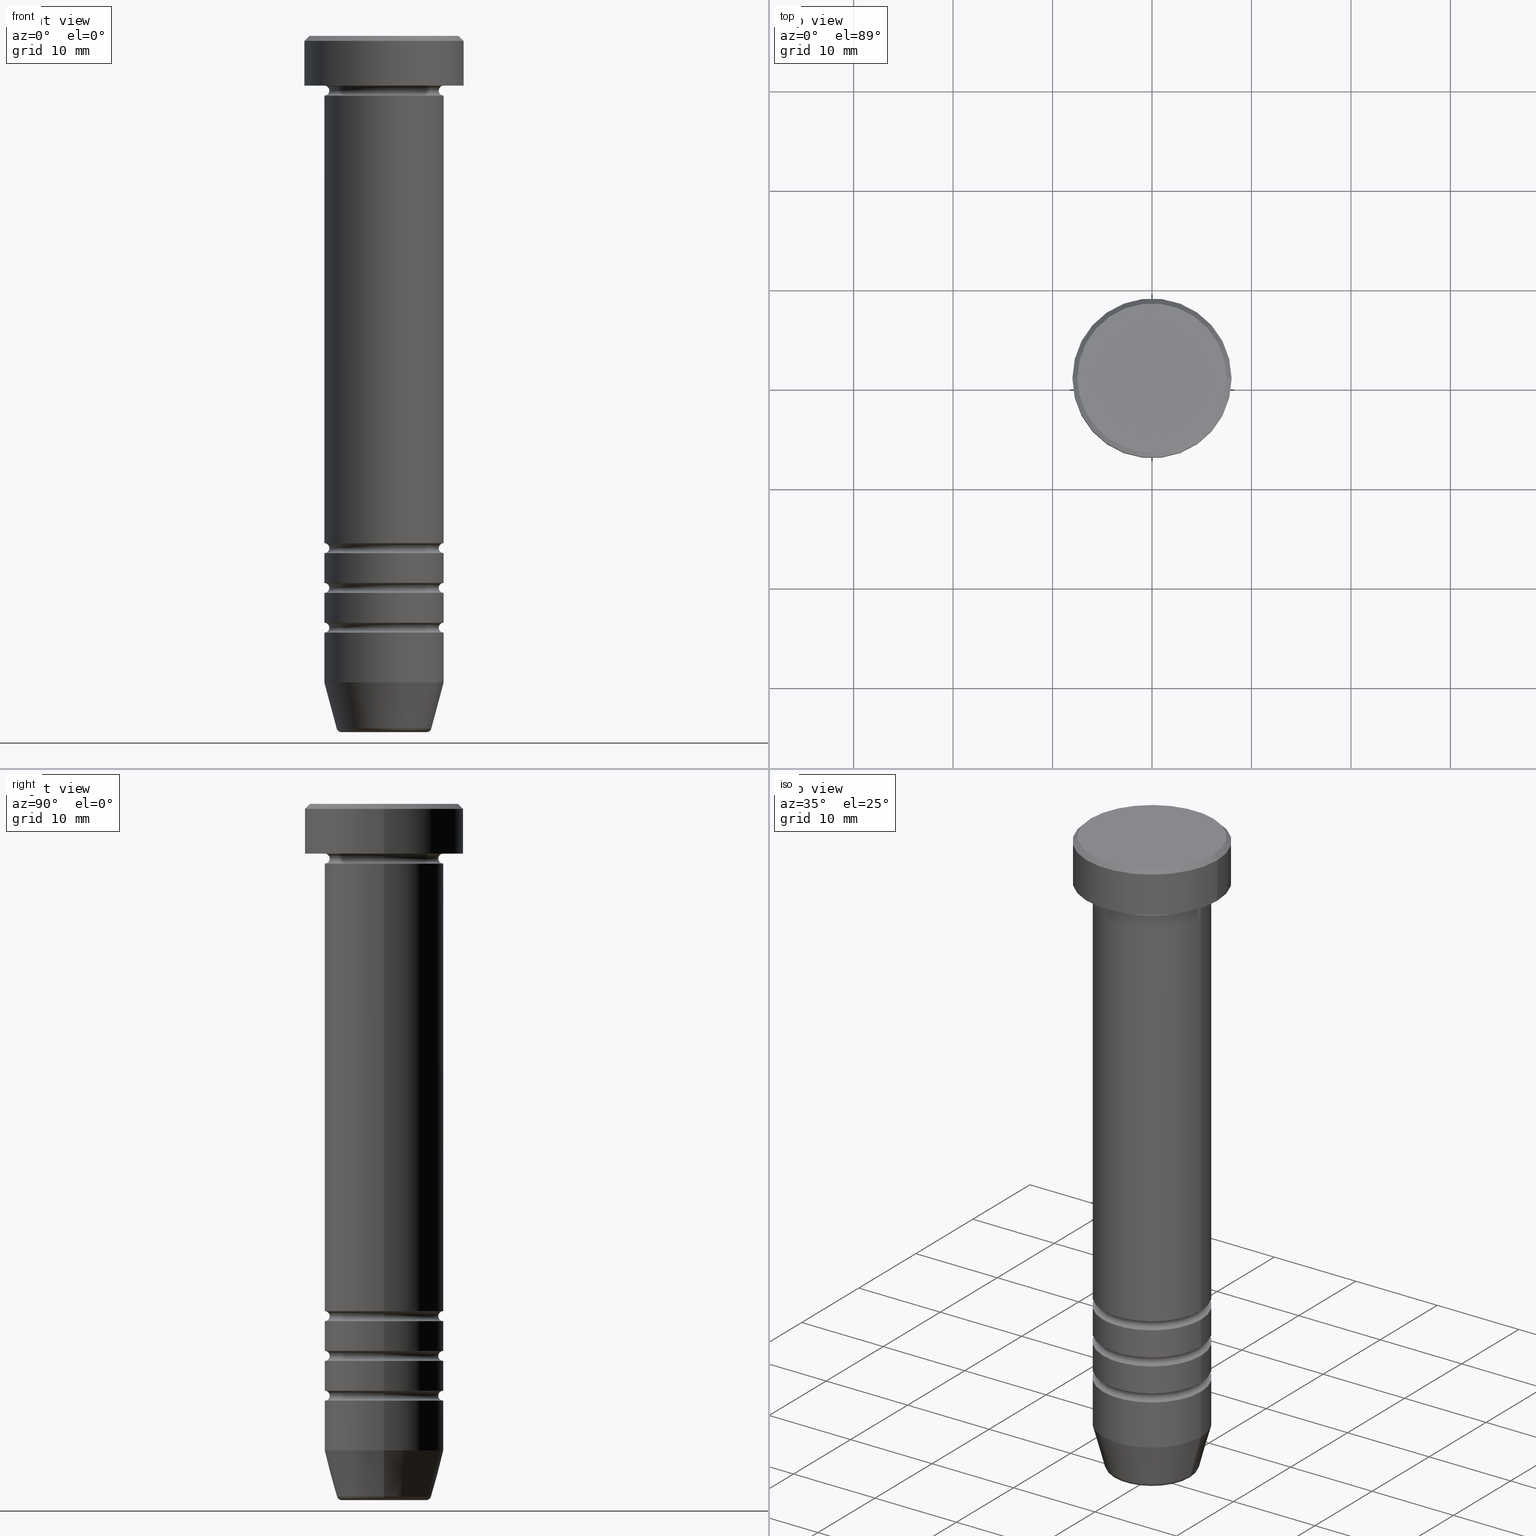
[diagram: canonical four-view strip — front | top / right | iso, engineering-drawing reading convention]
A machine part, canonical four-view strip (front | top / right | iso — engineering-drawing reading convention). The complete STEP part file that produces these views, byte-faithful:
ISO-10303-21;
HEADER;
FILE_DESCRIPTION (( 'STEP AP203' ),
    '1' );
FILE_NAME ('fb8a.STEP',
    '2024-01-03T00:06:08',
    ( '' ),
    ( '' ),
    'SwSTEP 2.0',
    'SolidWorks 2019',
    '' );
FILE_SCHEMA (( 'CONFIG_CONTROL_DESIGN' ));
ENDSEC;

DATA;
#1 = CARTESIAN_POINT ( 'NONE',  ( -6.000000000000000000, 7.347880794884119736E-16, 0.000000000000000000 ) ) ;
#2 = DIRECTION ( 'NONE',  ( -0.000000000000000000, -0.000000000000000000, 1.000000000000000000 ) ) ;
#3 = DIRECTION ( 'NONE',  ( -0.000000000000000000, -0.000000000000000000, 1.000000000000000000 ) ) ;
#4 = FACE_OUTER_BOUND ( 'NONE', #754, .T. ) ;
#5 = CIRCLE ( 'NONE', #729, 5.999999999999992895 ) ;
#6 = AXIS2_PLACEMENT_3D ( 'NONE', #13, #601, #823 ) ;
#7 = AXIS2_PLACEMENT_3D ( 'NONE', #299, #875, #428 ) ;
#8 = VERTEX_POINT ( 'NONE', #77 ) ;
#9 = CARTESIAN_POINT ( 'NONE',  ( 0.000000000000000000, 0.000000000000000000, -5.000000000000000000 ) ) ;
#10 = VERTEX_POINT ( 'NONE', #975 ) ;
#11 = EDGE_CURVE ( 'NONE', #902, #1061, #189, .T. ) ;
#12 = EDGE_LOOP ( 'NONE', ( #910, #340, #818, #357 ) ) ;
#13 = CARTESIAN_POINT ( 'NONE',  ( -6.000000000000000000, 7.347880794884119736E-16, -5.500000000000001776 ) ) ;
#14 = VERTEX_POINT ( 'NONE', #240 ) ;
#15 = FACE_OUTER_BOUND ( 'NONE', #514, .T. ) ;
#16 = EDGE_CURVE ( 'NONE', #348, #566, #797, .T. ) ;
#17 = CARTESIAN_POINT ( 'NONE',  ( 4.276590543854901227, 0.000000000000000000, -70.00000000000000000 ) ) ;
#18 = ORIENTED_EDGE ( 'NONE', *, *, #632, .T. ) ;
#19 = ORIENTED_EDGE ( 'NONE', *, *, #640, .T. ) ;
#20 = CARTESIAN_POINT ( 'NONE',  ( -5.999999999999992895, 7.347880794884112834E-16, -51.00000000000001421 ) ) ;
#21 = AXIS2_PLACEMENT_3D ( 'NONE', #745, #981, #665 ) ;
#22 = AXIS2_PLACEMENT_3D ( 'NONE', #970, #551, #952 ) ;
#23 = AXIS2_PLACEMENT_3D ( 'NONE', #341, #248, #669 ) ;
#24 = DIRECTION ( 'NONE',  ( 0.000000000000000000, 0.000000000000000000, -1.000000000000000000 ) ) ;
#25 = AXIS2_PLACEMENT_3D ( 'NONE', #794, #950, #297 ) ;
#26 = ORIENTED_EDGE ( 'NONE', *, *, #870, .F. ) ;
#27 = PRODUCT_DEFINITION_SHAPE ( 'NONE', 'NONE',  #274 ) ;
#28 = CARTESIAN_POINT ( 'NONE',  ( 0.000000000000000000, 0.000000000000000000, -51.50000000000002132 ) ) ;
#29 = DIRECTION ( 'NONE',  ( 1.000000000000000000, 0.000000000000000000, 0.000000000000000000 ) ) ;
#30 = EDGE_CURVE ( 'NONE', #565, #1061, #289, .T. ) ;
#31 = ORIENTED_EDGE ( 'NONE', *, *, #640, .F. ) ;
#32 = CARTESIAN_POINT ( 'NONE',  ( 0.000000000000000000, 0.000000000000000000, -59.00000000000001421 ) ) ;
#33 = DIRECTION ( 'NONE',  ( -0.000000000000000000, -0.000000000000000000, 1.000000000000000000 ) ) ;
#34 = ORIENTED_EDGE ( 'NONE', *, *, #857, .T. ) ;
#35 = DIRECTION ( 'NONE',  ( 1.000000000000000000, 0.000000000000000000, 0.000000000000000000 ) ) ;
#36 = DIRECTION ( 'NONE',  ( -1.000000000000000000, 0.000000000000000000, 0.000000000000000000 ) ) ;
#37 = AXIS2_PLACEMENT_3D ( 'NONE', #1023, #623, #287 ) ;
#38 = CIRCLE ( 'NONE', #644, 0.5000000000000004441 ) ;
#39 = AXIS2_PLACEMENT_3D ( 'NONE', #808, #791, #957 ) ;
#40 = CIRCLE ( 'NONE', #628, 4.759553456999433330 ) ;
#41 = ORIENTED_EDGE ( 'NONE', *, *, #1009, .T. ) ;
#42 = EDGE_CURVE ( 'NONE', #54, #653, #894, .T. ) ;
#43 = CARTESIAN_POINT ( 'NONE',  ( 6.000000000000000000, 0.000000000000000000, -52.00000000000002132 ) ) ;
#44 = DIRECTION ( 'NONE',  ( 1.000000000000000000, 0.000000000000000000, 0.000000000000000000 ) ) ;
#45 = APPROVAL_DATE_TIME ( #874, #339 ) ;
#46 = CARTESIAN_POINT ( 'NONE',  ( 0.000000000000000000, 0.000000000000000000, -5.500000000000001776 ) ) ;
#47 = CARTESIAN_POINT ( 'NONE',  ( -5.999999999999992895, 7.347880794884112834E-16, -59.00000000000001421 ) ) ;
#48 = FACE_OUTER_BOUND ( 'NONE', #417, .T. ) ;
#49 = ORIENTED_EDGE ( 'NONE', *, *, #925, .F. ) ;
#50 = CARTESIAN_POINT ( 'NONE',  ( 6.000000000000000000, 7.347880794884119736E-16, -5.000000000000000888 ) ) ;
#51 = VECTOR ( 'NONE', #616, 1000.000000000000000 ) ;
#52 = EDGE_CURVE ( 'NONE', #850, #10, #958, .T. ) ;
#53 = AXIS2_PLACEMENT_3D ( 'NONE', #351, #199, #273 ) ;
#54 = VERTEX_POINT ( 'NONE', #371 ) ;
#55 = AXIS2_PLACEMENT_3D ( 'NONE', #759, #180, #507 ) ;
#56 = DIRECTION ( 'NONE',  ( 1.224646799147353207E-16, 1.000000000000000000, 0.000000000000000000 ) ) ;
#57 = CARTESIAN_POINT ( 'NONE',  ( 0.000000000000000000, 0.000000000000000000, 0.000000000000000000 ) ) ;
#58 = ORIENTED_EDGE ( 'NONE', *, *, #42, .T. ) ;
#59 = ADVANCED_FACE ( 'NONE', ( #282 ), #520, .T. ) ;
#60 = EDGE_CURVE ( 'NONE', #176, #953, #712, .T. ) ;
#61 = DIRECTION ( 'NONE',  ( 0.000000000000000000, 0.000000000000000000, -1.000000000000000000 ) ) ;
#62 = CARTESIAN_POINT ( 'NONE',  ( -8.000000000000000000, 9.797174393178825657E-16, -5.000000000000000000 ) ) ;
#63 = CARTESIAN_POINT ( 'NONE',  ( 0.000000000000000000, 0.000000000000000000, 0.000000000000000000 ) ) ;
#64 = CARTESIAN_POINT ( 'NONE',  ( 5.999999999999999112, 0.000000000000000000, 0.000000000000000000 ) ) ;
#65 = EDGE_CURVE ( 'NONE', #923, #565, #846, .T. ) ;
#66 = DIRECTION ( 'NONE',  ( -1.000000000000000000, 0.000000000000000000, 0.000000000000000000 ) ) ;
#67 = DIRECTION ( 'NONE',  ( -0.000000000000000000, -0.000000000000000000, 1.000000000000000000 ) ) ;
#68 = EDGE_LOOP ( 'NONE', ( #415, #717, #888, #776 ) ) ;
#69 = DIRECTION ( 'NONE',  ( -0.000000000000000000, -0.000000000000000000, 1.000000000000000000 ) ) ;
#70 = FACE_OUTER_BOUND ( 'NONE', #333, .T. ) ;
#71 = ORIENTED_EDGE ( 'NONE', *, *, #11, .T. ) ;
#72 = AXIS2_PLACEMENT_3D ( 'NONE', #1041, #934, #963 ) ;
#73 = CIRCLE ( 'NONE', #55, 8.000000000000000000 ) ;
#74 = PRODUCT_DEFINITION_FORMATION_WITH_SPECIFIED_SOURCE ( 'LIBOVOLN�', '', #91, .NOT_KNOWN. ) ;
#75 = ADVANCED_FACE ( 'NONE', ( #1003 ), #385, .T. ) ;
#76 = DIRECTION ( 'NONE',  ( 1.000000000000000000, 0.000000000000000000, 0.000000000000000000 ) ) ;
#77 = CARTESIAN_POINT ( 'NONE',  ( 6.000000000000000000, 0.000000000000000000, -17.50000000000000000 ) ) ;
#78 = DIRECTION ( 'NONE',  ( 1.000000000000000000, 0.000000000000000000, 0.000000000000000000 ) ) ;
#79 = DIRECTION ( 'NONE',  ( -1.000000000000000000, -1.224646799147351482E-16, 0.000000000000000000 ) ) ;
#80 = DIRECTION ( 'NONE',  ( -1.000000000000000000, -1.224646799147351482E-16, 0.000000000000000000 ) ) ;
#81 = EDGE_LOOP ( 'NONE', ( #572, #286, #460, #128 ) ) ;
#82 = CARTESIAN_POINT ( 'NONE',  ( 0.000000000000000000, 0.000000000000000000, 0.000000000000000000 ) ) ;
#83 = ORIENTED_EDGE ( 'NONE', *, *, #381, .T. ) ;
#84 = APPROVAL_DATE_TIME ( #967, #1028 ) ;
#85 = ORIENTED_EDGE ( 'NONE', *, *, #536, .F. ) ;
#86 = DIRECTION ( 'NONE',  ( 0.000000000000000000, 0.000000000000000000, -1.000000000000000000 ) ) ;
#87 = AXIS2_PLACEMENT_3D ( 'NONE', #28, #433, #855 ) ;
#88 = AXIS2_PLACEMENT_3D ( 'NONE', #387, #969, #214 ) ;
#89 = LOCAL_TIME ( 1, 6, 8.000000000000000000, #904 ) ;
#90 = DIRECTION ( 'NONE',  ( 1.000000000000000000, 0.000000000000000000, 0.000000000000000000 ) ) ;
#91 = PRODUCT ( 'fb8a', 'fb8a', '', ( #1039 ) ) ;
#92 = FACE_OUTER_BOUND ( 'NONE', #314, .T. ) ;
#93 = EDGE_LOOP ( 'NONE', ( #877, #583, #675, #206 ) ) ;
#94 = EDGE_CURVE ( 'NONE', #283, #1019, #1013, .T. ) ;
#95 = LINE ( 'NONE', #511, #523 ) ;
#96 = DIRECTION ( 'NONE',  ( 1.000000000000000000, 0.000000000000000000, 0.000000000000000000 ) ) ;
#97 = EDGE_LOOP ( 'NONE', ( #83, #660, #187, #588 ) ) ;
#98 = DIRECTION ( 'NONE',  ( 0.000000000000000000, 0.000000000000000000, -1.000000000000000000 ) ) ;
#99 = PLANE ( 'NONE',  #209 ) ;
#100 = ADVANCED_FACE ( 'NONE', ( #114 ), #325, .F. ) ;
#101 = EDGE_LOOP ( 'NONE', ( #736, #319, #798, #150 ) ) ;
#102 = DIRECTION ( 'NONE',  ( 1.000000000000000000, 0.000000000000000000, 0.000000000000000000 ) ) ;
#103 = AXIS2_PLACEMENT_3D ( 'NONE', #354, #105, #1007 ) ;
#104 = AXIS2_PLACEMENT_3D ( 'NONE', #907, #450, #35 ) ;
#105 = DIRECTION ( 'NONE',  ( -0.000000000000000000, -0.000000000000000000, 1.000000000000000000 ) ) ;
#106 = ADVANCED_FACE ( 'NONE', ( #451 ), #278, .T. ) ;
#107 = VECTOR ( 'NONE', #69, 1000.000000000000000 ) ;
#108 =( GEOMETRIC_REPRESENTATION_CONTEXT ( 3 ) GLOBAL_UNCERTAINTY_ASSIGNED_CONTEXT ( ( #485 ) ) GLOBAL_UNIT_ASSIGNED_CONTEXT ( ( #144, #631, #394 ) ) REPRESENTATION_CONTEXT ( 'NONE', 'WORKASPACE' ) );
#109 = ORIENTED_EDGE ( 'NONE', *, *, #683, .F. ) ;
#110 = CARTESIAN_POINT ( 'NONE',  ( 5.999999999999994671, 0.000000000000000000, -51.50000000000002132 ) ) ;
#111 = CARTESIAN_POINT ( 'NONE',  ( 0.000000000000000000, 0.000000000000000000, -5.500000000000001776 ) ) ;
#112 = ORIENTED_EDGE ( 'NONE', *, *, #571, .T. ) ;
#113 = LINE ( 'NONE', #843, #1046 ) ;
#114 = FACE_OUTER_BOUND ( 'NONE', #12, .T. ) ;
#115 = CARTESIAN_POINT ( 'NONE',  ( 0.000000000000000000, 0.000000000000000000, -55.50000000000001421 ) ) ;
#116 = CALENDAR_DATE ( 2024, 3, 1 ) ;
#117 = DIRECTION ( 'NONE',  ( 1.000000000000000000, 0.000000000000000000, 0.000000000000000000 ) ) ;
#118 = AXIS2_PLACEMENT_3D ( 'NONE', #824, #517, #695 ) ;
#119 = APPROVAL_ROLE ( '' ) ;
#120 = CIRCLE ( 'NONE', #864, 0.5000000000000004441 ) ;
#121 = AXIS2_PLACEMENT_3D ( 'NONE', #218, #720, #872 ) ;
#122 = AXIS2_PLACEMENT_3D ( 'NONE', #405, #645, #80 ) ;
#123 = ORIENTED_EDGE ( 'NONE', *, *, #322, .F. ) ;
#124 = CARTESIAN_POINT ( 'NONE',  ( 0.000000000000000000, 0.000000000000000000, -52.00000000000002132 ) ) ;
#125 = VERTEX_POINT ( 'NONE', #844 ) ;
#126 = ADVANCED_FACE ( 'NONE', ( #441, #703 ), #284, .T. ) ;
#127 = CARTESIAN_POINT ( 'NONE',  ( -7.500000000000009770, 0.000000000000000000, 0.000000000000000000 ) ) ;
#128 = ORIENTED_EDGE ( 'NONE', *, *, #827, .F. ) ;
#129 = APPROVAL_ROLE ( '' ) ;
#130 = FACE_OUTER_BOUND ( 'NONE', #97, .T. ) ;
#131 = PERSON ( 'NEUR�EN�', 'NEUR�EN�', 'NEUR�EN�', ('NEUR�EN�'), ('NEUR�EN�'), ('NEUR�EN�') ) ;
#132 = EDGE_CURVE ( 'NONE', #356, #565, #553, .T. ) ;
#133 = FACE_OUTER_BOUND ( 'NONE', #276, .T. ) ;
#134 = AXIS2_PLACEMENT_3D ( 'NONE', #706, #548, #462 ) ;
#135 = ADVANCED_FACE ( 'NONE', ( #1020 ), #224, .T. ) ;
#136 = CARTESIAN_POINT ( 'NONE',  ( -8.000000000000000000, 9.797174393178825657E-16, -0.4999999999999935052 ) ) ;
#137 = VECTOR ( 'NONE', #3, 1000.000000000000000 ) ;
#138 = ORIENTED_EDGE ( 'NONE', *, *, #449, .T. ) ;
#139 = AXIS2_PLACEMENT_3D ( 'NONE', #805, #590, #298 ) ;
#140 = FACE_OUTER_BOUND ( 'NONE', #101, .T. ) ;
#141 = DIRECTION ( 'NONE',  ( 1.000000000000000000, 0.000000000000000000, 0.000000000000000000 ) ) ;
#142 = CARTESIAN_POINT ( 'NONE',  ( 0.000000000000000000, 0.000000000000000000, -59.50000000000001421 ) ) ;
#143 = CARTESIAN_POINT ( 'NONE',  ( 0.000000000000000000, 0.000000000000000000, -51.50000000000002132 ) ) ;
#144 =( LENGTH_UNIT ( ) NAMED_UNIT ( * ) SI_UNIT ( .MILLI., .METRE. ) );
#145 = CARTESIAN_POINT ( 'NONE',  ( 0.000000000000000000, 0.000000000000000000, -56.00000000000001421 ) ) ;
#146 = DIRECTION ( 'NONE',  ( -1.000000000000000000, 0.000000000000000000, 0.000000000000000000 ) ) ;
#147 = PERSON_AND_ORGANIZATION ( #131, #1016 ) ;
#148 = DIRECTION ( 'NONE',  ( 0.2588190451025214611, 0.000000000000000000, 0.9659258262890679791 ) ) ;
#149 = FACE_OUTER_BOUND ( 'NONE', #968, .T. ) ;
#150 = ORIENTED_EDGE ( 'NONE', *, *, #764, .F. ) ;
#151 = ADVANCED_FACE ( 'NONE', ( #130 ), #222, .T. ) ;
#152 = VERTEX_POINT ( 'NONE', #939 ) ;
#153 = DIRECTION ( 'NONE',  ( -0.000000000000000000, -0.000000000000000000, 1.000000000000000000 ) ) ;
#154 = DATE_AND_TIME ( #401, #89 ) ;
#155 = CARTESIAN_POINT ( 'NONE',  ( 8.000000000000000000, 0.000000000000000000, -5.000000000000000000 ) ) ;
#156 = FACE_OUTER_BOUND ( 'NONE', #321, .T. ) ;
#157 = AXIS2_PLACEMENT_3D ( 'NONE', #410, #67, #816 ) ;
#158 = DIRECTION ( 'NONE',  ( -0.000000000000000000, -0.000000000000000000, 1.000000000000000000 ) ) ;
#159 = ORIENTED_EDGE ( 'NONE', *, *, #16, .T. ) ;
#160 = PLANE ( 'NONE',  #700 ) ;
#161 = DIRECTION ( 'NONE',  ( -0.000000000000000000, -0.000000000000000000, 1.000000000000000000 ) ) ;
#162 = ORIENTED_EDGE ( 'NONE', *, *, #586, .F. ) ;
#163 = CARTESIAN_POINT ( 'NONE',  ( 0.000000000000000000, 2.449293598294707302E-15, -70.00000000000000000 ) ) ;
#164 = FACE_OUTER_BOUND ( 'NONE', #552, .T. ) ;
#165 = EDGE_CURVE ( 'NONE', #547, #991, #591, .T. ) ;
#166 = DIRECTION ( 'NONE',  ( 1.000000000000000000, 0.000000000000000000, 0.000000000000000000 ) ) ;
#167 = ORIENTED_EDGE ( 'NONE', *, *, #883, .F. ) ;
#168 = PRODUCT_RELATED_PRODUCT_CATEGORY ( 'detail', '', ( #91 ) ) ;
#169 = VERTEX_POINT ( 'NONE', #43 ) ;
#170 = TOROIDAL_SURFACE ( 'NONE', #995, 5.999999999999994671, 0.5000000000000000000 ) ;
#171 = FACE_OUTER_BOUND ( 'NONE', #704, .T. ) ;
#172 = AXIS2_PLACEMENT_3D ( 'NONE', #918, #976, #265 ) ;
#173 = APPROVAL_PERSON_ORGANIZATION ( #1022, #859, #129 ) ;
#174 = LINE ( 'NONE', #998, #243 ) ;
#175 = ORIENTED_EDGE ( 'NONE', *, *, #1059, .T. ) ;
#176 = VERTEX_POINT ( 'NONE', #1036 ) ;
#177 = ADVANCED_FACE ( 'NONE', ( #945 ), #306, .F. ) ;
#178 = DIRECTION ( 'NONE',  ( 1.000000000000000000, 0.000000000000000000, 0.000000000000000000 ) ) ;
#179 = DIRECTION ( 'NONE',  ( 0.000000000000000000, 0.000000000000000000, -1.000000000000000000 ) ) ;
#180 = DIRECTION ( 'NONE',  ( -0.000000000000000000, -0.000000000000000000, 1.000000000000000000 ) ) ;
#181 = ORIENTED_EDGE ( 'NONE', *, *, #784, .T. ) ;
#182 = EDGE_LOOP ( 'NONE', ( #543, #873, #760, #884 ) ) ;
#183 = EDGE_CURVE ( 'NONE', #14, #756, #577, .T. ) ;
#184 = DIRECTION ( 'NONE',  ( 0.000000000000000000, -1.000000000000000000, 0.000000000000000000 ) ) ;
#185 = DIRECTION ( 'NONE',  ( -0.000000000000000000, -0.000000000000000000, 1.000000000000000000 ) ) ;
#186 = DIRECTION ( 'NONE',  ( 0.000000000000000000, -1.000000000000000000, 0.000000000000000000 ) ) ;
#187 = ORIENTED_EDGE ( 'NONE', *, *, #527, .F. ) ;
#188 = ORIENTED_EDGE ( 'NONE', *, *, #244, .F. ) ;
#189 = CIRCLE ( 'NONE', #21, 0.5000000000000004441 ) ;
#190 = FACE_OUTER_BOUND ( 'NONE', #301, .T. ) ;
#191 = AXIS2_PLACEMENT_3D ( 'NONE', #110, #184, #690 ) ;
#192 = AXIS2_PLACEMENT_3D ( 'NONE', #812, #951, #550 ) ;
#193 = DIRECTION ( 'NONE',  ( 1.000000000000000000, 0.000000000000000000, 0.000000000000000000 ) ) ;
#194 = CC_DESIGN_PERSON_AND_ORGANIZATION_ASSIGNMENT ( #391, #856, ( #74 ) ) ;
#195 = TOROIDAL_SURFACE ( 'NONE', #192, 5.999999999999994671, 0.5000000000000000000 ) ;
#196 = AXIS2_PLACEMENT_3D ( 'NONE', #239, #153, #1057 ) ;
#197 = ORIENTED_EDGE ( 'NONE', *, *, #603, .F. ) ;
#198 = ORIENTED_EDGE ( 'NONE', *, *, #1053, .F. ) ;
#199 = DIRECTION ( 'NONE',  ( 1.224646799147353207E-16, 1.000000000000000000, 0.000000000000000000 ) ) ;
#200 = CARTESIAN_POINT ( 'NONE',  ( 0.000000000000000000, 0.000000000000000000, -56.00000000000001421 ) ) ;
#201 = ADVANCED_FACE ( 'NONE', ( #207 ), #878, .T. ) ;
#202 = CARTESIAN_POINT ( 'NONE',  ( 0.000000000000000000, 0.000000000000000000, -51.50000000000002132 ) ) ;
#203 = PERSON_AND_ORGANIZATION ( #131, #1016 ) ;
#204 = CARTESIAN_POINT ( 'NONE',  ( 0.000000000000000000, 0.000000000000000000, -70.00000000000000000 ) ) ;
#205 = ADVANCED_FACE ( 'NONE', ( #871 ), #540, .T. ) ;
#206 = ORIENTED_EDGE ( 'NONE', *, *, #11, .F. ) ;
#207 = FACE_OUTER_BOUND ( 'NONE', #81, .T. ) ;
#208 = COORDINATED_UNIVERSAL_TIME_OFFSET ( 1, 0, .AHEAD. ) ;
#209 = AXIS2_PLACEMENT_3D ( 'NONE', #600, #427, #269 ) ;
#210 = CIRCLE ( 'NONE', #598, 8.000000000000000000 ) ;
#211 = ORIENTED_EDGE ( 'NONE', *, *, #183, .F. ) ;
#212 = EDGE_CURVE ( 'NONE', #10, #310, #715, .T. ) ;
#213 = DIRECTION ( 'NONE',  ( -0.000000000000000000, -1.000000000000000000, -0.000000000000000000 ) ) ;
#214 = DIRECTION ( 'NONE',  ( 1.000000000000000000, 0.000000000000000000, 0.000000000000000000 ) ) ;
#215 = ORIENTED_EDGE ( 'NONE', *, *, #362, .T. ) ;
#216 = ADVANCED_FACE ( 'NONE', ( #140 ), #217, .T. ) ;
#217 = CYLINDRICAL_SURFACE ( 'NONE', #473, 5.999999999999999112 ) ;
#218 = CARTESIAN_POINT ( 'NONE',  ( 0.000000000000000000, 0.000000000000000000, -59.50000000000001421 ) ) ;
#219 = DIRECTION ( 'NONE',  ( -1.000000000000000000, -1.224646799147351482E-16, 0.000000000000000000 ) ) ;
#220 = ORIENTED_EDGE ( 'NONE', *, *, #412, .T. ) ;
#221 = CALENDAR_DATE ( 2024, 3, 1 ) ;
#222 = CYLINDRICAL_SURFACE ( 'NONE', #908, 5.999999999999996447 ) ;
#223 = DIRECTION ( 'NONE',  ( -0.000000000000000000, -0.000000000000000000, 1.000000000000000000 ) ) ;
#224 = TOROIDAL_SURFACE ( 'NONE', #37, 4.276590543854901227, 0.5000000000000000000 ) ;
#225 = DIRECTION ( 'NONE',  ( 0.000000000000000000, 0.000000000000000000, -1.000000000000000000 ) ) ;
#226 = AXIS2_PLACEMENT_3D ( 'NONE', #917, #179, #762 ) ;
#227 = CIRCLE ( 'NONE', #783, 6.000000000000000000 ) ;
#228 = ORIENTED_EDGE ( 'NONE', *, *, #826, .T. ) ;
#229 = CC_DESIGN_APPROVAL ( #339, ( #74 ) ) ;
#230 = PERSON_AND_ORGANIZATION ( #131, #1016 ) ;
#231 = DIRECTION ( 'NONE',  ( 1.000000000000000000, 0.000000000000000000, 0.000000000000000000 ) ) ;
#232 = ADVANCED_FACE ( 'NONE', ( #1032 ), #376, .T. ) ;
#233 = ORIENTED_EDGE ( 'NONE', *, *, #367, .T. ) ;
#234 = CARTESIAN_POINT ( 'NONE',  ( -6.000000000000000000, 7.347880794884119736E-16, -17.50000000000000000 ) ) ;
#235 = DIRECTION ( 'NONE',  ( -0.000000000000000000, -0.000000000000000000, 1.000000000000000000 ) ) ;
#236 = VERTEX_POINT ( 'NONE', #416 ) ;
#237 = ORIENTED_EDGE ( 'NONE', *, *, #60, .T. ) ;
#238 = CARTESIAN_POINT ( 'NONE',  ( -5.999999999999994671, 0.000000000000000000, -55.50000000000001421 ) ) ;
#239 = CARTESIAN_POINT ( 'NONE',  ( 0.000000000000000000, 0.000000000000000000, -5.500000000000001776 ) ) ;
#240 = CARTESIAN_POINT ( 'NONE',  ( 7.500000000000009770, 9.491012693391993703E-16, 0.000000000000000000 ) ) ;
#241 = CARTESIAN_POINT ( 'NONE',  ( 8.000000000000000000, 0.000000000000000000, -0.4999999999999935052 ) ) ;
#242 = AXIS2_PLACEMENT_3D ( 'NONE', #200, #771, #29 ) ;
#243 = VECTOR ( 'NONE', #320, 1000.000000000000000 ) ;
#244 = EDGE_CURVE ( 'NONE', #696, #236, #386, .T. ) ;
#245 = LOCAL_TIME ( 1, 6, 8.000000000000000000, #208 ) ;
#246 = DIRECTION ( 'NONE',  ( -0.000000000000000000, -0.000000000000000000, 1.000000000000000000 ) ) ;
#247 = CARTESIAN_POINT ( 'NONE',  ( 0.000000000000000000, 0.000000000000000000, -65.00000000000000000 ) ) ;
#248 = DIRECTION ( 'NONE',  ( -0.000000000000000000, -0.000000000000000000, 1.000000000000000000 ) ) ;
#249 = ORIENTED_EDGE ( 'NONE', *, *, #250, .T. ) ;
#250 = EDGE_CURVE ( 'NONE', #294, #360, #979, .T. ) ;
#251 = ORIENTED_EDGE ( 'NONE', *, *, #94, .F. ) ;
#252 = EDGE_CURVE ( 'NONE', #425, #948, #1056, .T. ) ;
#253 = DIRECTION ( 'NONE',  ( -0.000000000000000000, -0.000000000000000000, 1.000000000000000000 ) ) ;
#254 = ORIENTED_EDGE ( 'NONE', *, *, #937, .T. ) ;
#255 = DIRECTION ( 'NONE',  ( -1.000000000000000000, 0.000000000000000000, 0.000000000000000000 ) ) ;
#256 = EDGE_LOOP ( 'NONE', ( #409, #933, #692, #343 ) ) ;
#257 = AXIS2_PLACEMENT_3D ( 'NONE', #806, #56, #788 ) ;
#258 = ORIENTED_EDGE ( 'NONE', *, *, #753, .F. ) ;
#259 = CARTESIAN_POINT ( 'NONE',  ( -5.499999999999995559, 7.041719095097278907E-16, -55.50000000000000711 ) ) ;
#260 = CIRCLE ( 'NONE', #594, 5.999999999999992895 ) ;
#261 = FACE_OUTER_BOUND ( 'NONE', #614, .T. ) ;
#262 = CIRCLE ( 'NONE', #626, 0.5000000000000004441 ) ;
#263 = AXIS2_PLACEMENT_3D ( 'NONE', #142, #479, #659 ) ;
#264 = CARTESIAN_POINT ( 'NONE',  ( 0.000000000000000000, 0.000000000000000000, -70.00000000000000000 ) ) ;
#265 = DIRECTION ( 'NONE',  ( 1.000000000000000000, 0.000000000000000000, 0.000000000000000000 ) ) ;
#266 = ORIENTED_EDGE ( 'NONE', *, *, #989, .F. ) ;
#267 = EDGE_CURVE ( 'NONE', #176, #991, #308, .T. ) ;
#268 = ORIENTED_EDGE ( 'NONE', *, *, #461, .T. ) ;
#269 = DIRECTION ( 'NONE',  ( -1.000000000000000000, 0.000000000000000000, -0.000000000000000000 ) ) ;
#270 = CARTESIAN_POINT ( 'NONE',  ( 0.000000000000000000, 0.000000000000000000, -69.50000000000000000 ) ) ;
#271 = ORIENTED_EDGE ( 'NONE', *, *, #367, .F. ) ;
#272 = EDGE_LOOP ( 'NONE', ( #162, #198, #268, #159 ) ) ;
#273 = DIRECTION ( 'NONE',  ( -1.000000000000000000, 1.224646799147353454E-16, 0.000000000000000000 ) ) ;
#274 = PRODUCT_DEFINITION ( 'NEZN�M�', '', #74, #710 ) ;
#275 = CARTESIAN_POINT ( 'NONE',  ( -5.999999999999994671, 7.347880794884112834E-16, -59.50000000000001421 ) ) ;
#276 = EDGE_LOOP ( 'NONE', ( #338, #138, #688, #486 ) ) ;
#277 = EDGE_LOOP ( 'NONE', ( #529, #657, #848, #167 ) ) ;
#278 = CONICAL_SURFACE ( 'NONE', #828, 7.500000000000009770, 0.7853981633974447263 ) ;
#279 = CYLINDRICAL_SURFACE ( 'NONE', #750, 8.000000000000000000 ) ;
#280 = CIRCLE ( 'NONE', #226, 5.499999999999995559 ) ;
#281 = CIRCLE ( 'NONE', #926, 0.5000000000000004441 ) ;
#282 = FACE_OUTER_BOUND ( 'NONE', #182, .T. ) ;
#283 = VERTEX_POINT ( 'NONE', #589 ) ;
#284 = PLANE ( 'NONE',  #418 ) ;
#285 = EDGE_CURVE ( 'NONE', #566, #348, #667, .T. ) ;
#286 = ORIENTED_EDGE ( 'NONE', *, *, #212, .T. ) ;
#287 = DIRECTION ( 'NONE',  ( 1.000000000000000000, 0.000000000000000000, 0.000000000000000000 ) ) ;
#288 = APPROVAL_STATUS ( 'not_yet_approved' ) ;
#289 = CIRCLE ( 'NONE', #118, 5.499999999999995559 ) ;
#290 = VECTOR ( 'NONE', #778, 1000.000000000000114 ) ;
#291 = DIRECTION ( 'NONE',  ( -1.000000000000000000, 1.224646799147351482E-16, 0.000000000000000000 ) ) ;
#292 = CIRCLE ( 'NONE', #732, 0.5000000000000004441 ) ;
#293 = TOROIDAL_SURFACE ( 'NONE', #263, 5.999999999999994671, 0.5000000000000000000 ) ;
#294 = VERTEX_POINT ( 'NONE', #836 ) ;
#295 = EDGE_CURVE ( 'NONE', #14, #597, #113, .T. ) ;
#296 = DATE_AND_TIME ( #221, #960 ) ;
#297 = DIRECTION ( 'NONE',  ( 1.000000000000000000, 0.000000000000000000, 0.000000000000000000 ) ) ;
#298 = DIRECTION ( 'NONE',  ( 1.000000000000000000, 0.000000000000000000, 0.000000000000000000 ) ) ;
#299 = CARTESIAN_POINT ( 'NONE',  ( 0.000000000000000000, 0.000000000000000000, -60.00000000000001421 ) ) ;
#300 = DIRECTION ( 'NONE',  ( 1.000000000000000000, 0.000000000000000000, 0.000000000000000000 ) ) ;
#301 = EDGE_LOOP ( 'NONE', ( #411, #34, #1055, #585 ) ) ;
#302 = PERSON_AND_ORGANIZATION_ROLE ( 'classification_officer' ) ;
#303 = DIRECTION ( 'NONE',  ( -0.000000000000000000, -0.000000000000000000, 1.000000000000000000 ) ) ;
#304 = ADVANCED_FACE ( 'NONE', ( #530 ), #99, .T. ) ;
#305 = DIRECTION ( 'NONE',  ( -0.000000000000000000, -0.000000000000000000, 1.000000000000000000 ) ) ;
#306 = TOROIDAL_SURFACE ( 'NONE', #452, 6.000000000000000000, 0.5000000000000000000 ) ;
#307 = DIRECTION ( 'NONE',  ( 1.000000000000000000, 0.000000000000000000, 0.000000000000000000 ) ) ;
#308 = CIRCLE ( 'NONE', #437, 0.5000000000000004441 ) ;
#309 = CIRCLE ( 'NONE', #39, 5.499999999999995559 ) ;
#310 = VERTEX_POINT ( 'NONE', #609 ) ;
#311 = AXIS2_PLACEMENT_3D ( 'NONE', #334, #488, #78 ) ;
#312 = EDGE_LOOP ( 'NONE', ( #31, #85 ) ) ;
#313 = CARTESIAN_POINT ( 'NONE',  ( 6.000000000000000000, 0.000000000000000000, -56.00000000000001421 ) ) ;
#314 = EDGE_LOOP ( 'NONE', ( #680, #913, #249, #436 ) ) ;
#315 = CARTESIAN_POINT ( 'NONE',  ( -5.999999999999999112, 7.347880794884118750E-16, 0.000000000000000000 ) ) ;
#316 = CARTESIAN_POINT ( 'NONE',  ( 0.000000000000000000, 0.000000000000000000, -59.50000000000001421 ) ) ;
#317 = EDGE_LOOP ( 'NONE', ( #964, #508, #611, #650 ) ) ;
#318 = CARTESIAN_POINT ( 'NONE',  ( -5.999999999999996447, 7.347880794884115792E-16, 0.000000000000000000 ) ) ;
#319 = ORIENTED_EDGE ( 'NONE', *, *, #592, .T. ) ;
#320 = DIRECTION ( 'NONE',  ( -0.000000000000000000, -0.000000000000000000, 1.000000000000000000 ) ) ;
#321 = EDGE_LOOP ( 'NONE', ( #1004, #711, #1001, #681 ) ) ;
#322 = EDGE_CURVE ( 'NONE', #923, #176, #95, .T. ) ;
#323 = ORIENTED_EDGE ( 'NONE', *, *, #16, .F. ) ;
#324 = FACE_OUTER_BOUND ( 'NONE', #602, .T. ) ;
#325 = TOROIDAL_SURFACE ( 'NONE', #499, 5.999999999999994671, 0.5000000000000000000 ) ;
#326 = VECTOR ( 'NONE', #880, 1000.000000000000114 ) ;
#327 = CIRCLE ( 'NONE', #7, 6.000000000000000000 ) ;
#328 = ADVANCED_FACE ( 'NONE', ( #171 ), #829, .F. ) ;
#329 = ORIENTED_EDGE ( 'NONE', *, *, #395, .F. ) ;
#330 = CIRCLE ( 'NONE', #580, 6.000000000000000000 ) ;
#331 = CONICAL_SURFACE ( 'NONE', #353, 7.500000000000009770, 0.7853981633974447263 ) ;
#332 = EDGE_CURVE ( 'NONE', #858, #374, #698, .T. ) ;
#333 = EDGE_LOOP ( 'NONE', ( #123, #1005, #112, #854 ) ) ;
#334 = CARTESIAN_POINT ( 'NONE',  ( 0.000000000000000000, 0.000000000000000000, -51.00000000000001421 ) ) ;
#335 = DIRECTION ( 'NONE',  ( 1.000000000000000000, 0.000000000000000000, 0.000000000000000000 ) ) ;
#336 = ORIENTED_EDGE ( 'NONE', *, *, #332, .T. ) ;
#337 = DIRECTION ( 'NONE',  ( 1.000000000000000000, 0.000000000000000000, 0.000000000000000000 ) ) ;
#338 = ORIENTED_EDGE ( 'NONE', *, *, #362, .F. ) ;
#339 = APPROVAL ( #731, 'NEUR�EN�' ) ;
#340 = ORIENTED_EDGE ( 'NONE', *, *, #165, .T. ) ;
#341 = CARTESIAN_POINT ( 'NONE',  ( 0.000000000000000000, 0.000000000000000000, -55.50000000000000711 ) ) ;
#342 = ORIENTED_EDGE ( 'NONE', *, *, #442, .F. ) ;
#343 = ORIENTED_EDGE ( 'NONE', *, *, #621, .F. ) ;
#344 = DIRECTION ( 'NONE',  ( 1.000000000000000000, 0.000000000000000000, 0.000000000000000000 ) ) ;
#345 = CARTESIAN_POINT ( 'NONE',  ( 6.000000000000000000, 0.000000000000000000, -6.000000000000001776 ) ) ;
#346 = EDGE_CURVE ( 'NONE', #54, #10, #815, .T. ) ;
#347 = CARTESIAN_POINT ( 'NONE',  ( 5.999999999999994671, 7.347880794884112834E-16, -59.50000000000001421 ) ) ;
#348 = VERTEX_POINT ( 'NONE', #345 ) ;
#349 = ORIENTED_EDGE ( 'NONE', *, *, #1006, .F. ) ;
#350 = AXIS2_PLACEMENT_3D ( 'NONE', #204, #554, #545 ) ;
#351 = CARTESIAN_POINT ( 'NONE',  ( -4.276590543854901227, 5.237312920795743091E-16, -69.50000000000000000 ) ) ;
#352 = AXIS2_PLACEMENT_3D ( 'NONE', #9, #253, #335 ) ;
#353 = AXIS2_PLACEMENT_3D ( 'NONE', #839, #821, #146 ) ;
#354 = CARTESIAN_POINT ( 'NONE',  ( 0.000000000000000000, 0.000000000000000000, -70.00000000000000000 ) ) ;
#355 = FACE_OUTER_BOUND ( 'NONE', #256, .T. ) ;
#356 = VERTEX_POINT ( 'NONE', #438 ) ;
#357 = ORIENTED_EDGE ( 'NONE', *, *, #250, .F. ) ;
#358 = DIRECTION ( 'NONE',  ( 1.000000000000000000, 0.000000000000000000, 0.000000000000000000 ) ) ;
#359 = CARTESIAN_POINT ( 'NONE',  ( 0.000000000000000000, 8.000000000000000000, -5.000000000000000888 ) ) ;
#360 = VERTEX_POINT ( 'NONE', #757 ) ;
#361 = EDGE_LOOP ( 'NONE', ( #237, #431, #41, #513 ) ) ;
#362 = EDGE_CURVE ( 'NONE', #1019, #566, #515, .T. ) ;
#363 = DIRECTION ( 'NONE',  ( -0.000000000000000000, -0.000000000000000000, 1.000000000000000000 ) ) ;
#364 = CARTESIAN_POINT ( 'NONE',  ( 0.000000000000000000, 0.000000000000000000, -69.62940952255127058 ) ) ;
#365 = DIRECTION ( 'NONE',  ( 1.000000000000000000, 0.000000000000000000, 0.000000000000000000 ) ) ;
#366 = EDGE_LOOP ( 'NONE', ( #919, #215, #323, #938 ) ) ;
#367 = EDGE_CURVE ( 'NONE', #756, #494, #852, .T. ) ;
#368 = DIRECTION ( 'NONE',  ( -0.000000000000000000, -0.000000000000000000, 1.000000000000000000 ) ) ;
#369 = VECTOR ( 'NONE', #658, 1000.000000000000000 ) ;
#370 = CIRCLE ( 'NONE', #615, 6.000000000000000000 ) ;
#371 = CARTESIAN_POINT ( 'NONE',  ( -4.276590543854901227, 5.533042413640409504E-16, -70.00000000000000000 ) ) ;
#372 = FACE_OUTER_BOUND ( 'NONE', #272, .T. ) ;
#373 = CIRCLE ( 'NONE', #440, 5.499999999999995559 ) ;
#374 = VERTEX_POINT ( 'NONE', #677 ) ;
#375 = DIRECTION ( 'NONE',  ( 0.000000000000000000, 0.000000000000000000, -1.000000000000000000 ) ) ;
#376 = CYLINDRICAL_SURFACE ( 'NONE', #134, 5.999999999999996447 ) ;
#377 = ADVANCED_FACE ( 'NONE', ( #15 ), #664, .F. ) ;
#378 = ORIENTED_EDGE ( 'NONE', *, *, #244, .T. ) ;
#379 = SECURITY_CLASSIFICATION_LEVEL ( 'unclassified' ) ;
#380 = DIRECTION ( 'NONE',  ( -1.000000000000000000, 0.000000000000000000, -0.000000000000000000 ) ) ;
#381 = EDGE_CURVE ( 'NONE', #858, #425, #5, .T. ) ;
#382 = FACE_OUTER_BOUND ( 'NONE', #509, .T. ) ;
#383 = EDGE_LOOP ( 'NONE', ( #19, #838, #402, #992 ) ) ;
#384 = DIRECTION ( 'NONE',  ( 0.000000000000000000, 0.000000000000000000, -1.000000000000000000 ) ) ;
#385 = TOROIDAL_SURFACE ( 'NONE', #978, 4.276590543854901227, 0.5000000000000000000 ) ;
#386 = CIRCLE ( 'NONE', #766, 6.000000000000000000 ) ;
#387 = CARTESIAN_POINT ( 'NONE',  ( 0.000000000000000000, 0.000000000000000000, -55.50000000000000711 ) ) ;
#388 = VECTOR ( 'NONE', #563, 1000.000000000000000 ) ;
#389 = CC_DESIGN_APPROVAL ( #1028, ( #274 ) ) ;
#390 = CC_DESIGN_PERSON_AND_ORGANIZATION_ASSIGNMENT ( #534, #935, ( #74 ) ) ;
#391 = PERSON_AND_ORGANIZATION ( #131, #1016 ) ;
#392 = DIRECTION ( 'NONE',  ( 1.224646799147353207E-16, 1.000000000000000000, 0.000000000000000000 ) ) ;
#393 = DIRECTION ( 'NONE',  ( 1.000000000000000000, 0.000000000000000000, 0.000000000000000000 ) ) ;
#394 =( NAMED_UNIT ( * ) SI_UNIT ( $, .STERADIAN. ) SOLID_ANGLE_UNIT ( ) );
#395 = EDGE_CURVE ( 'NONE', #902, #923, #260, .T. ) ;
#396 = CARTESIAN_POINT ( 'NONE',  ( 5.499999999999995559, 0.000000000000000000, -59.50000000000001421 ) ) ;
#397 = DATE_TIME_ROLE ( 'creation_date' ) ;
#398 = CARTESIAN_POINT ( 'NONE',  ( 0.000000000000000000, 0.000000000000000000, -5.500000000000001776 ) ) ;
#399 = DIRECTION ( 'NONE',  ( 1.000000000000000000, 0.000000000000000000, 0.000000000000000000 ) ) ;
#400 = ADVANCED_FACE ( 'NONE', ( #190 ), #613, .F. ) ;
#401 = CALENDAR_DATE ( 2024, 3, 1 ) ;
#402 = ORIENTED_EDGE ( 'NONE', *, *, #972, .T. ) ;
#403 = ORIENTED_EDGE ( 'NONE', *, *, #536, .T. ) ;
#404 = CIRCLE ( 'NONE', #689, 6.000000000000000000 ) ;
#405 = CARTESIAN_POINT ( 'NONE',  ( 5.999999999999994671, 7.347880794884112834E-16, -55.50000000000001421 ) ) ;
#406 = EDGE_LOOP ( 'NONE', ( #830, #927, #787, #465 ) ) ;
#407 = ADVANCED_FACE ( 'NONE', ( #261 ), #279, .T. ) ;
#408 = DIRECTION ( 'NONE',  ( -0.000000000000000000, -0.000000000000000000, 1.000000000000000000 ) ) ;
#409 = ORIENTED_EDGE ( 'NONE', *, *, #867, .T. ) ;
#410 = CARTESIAN_POINT ( 'NONE',  ( 0.000000000000000000, 0.000000000000000000, 0.000000000000000000 ) ) ;
#411 = ORIENTED_EDGE ( 'NONE', *, *, #655, .F. ) ;
#412 = EDGE_CURVE ( 'NONE', #1061, #565, #280, .T. ) ;
#413 = CARTESIAN_POINT ( 'NONE',  ( 6.000000000000000000, 0.000000000000000000, 0.000000000000000000 ) ) ;
#414 = DIRECTION ( 'NONE',  ( 1.000000000000000000, 0.000000000000000000, 0.000000000000000000 ) ) ;
#415 = ORIENTED_EDGE ( 'NONE', *, *, #395, .T. ) ;
#416 = CARTESIAN_POINT ( 'NONE',  ( -6.000000000000000000, 0.000000000000000000, -5.000000000000000888 ) ) ;
#417 = EDGE_LOOP ( 'NONE', ( #722, #522, #220, #435 ) ) ;
#418 = AXIS2_PLACEMENT_3D ( 'NONE', #359, #61, #380 ) ;
#419 = ORIENTED_EDGE ( 'NONE', *, *, #747, .T. ) ;
#420 = AXIS2_PLACEMENT_3D ( 'NONE', #424, #408, #44 ) ;
#421 = ORIENTED_EDGE ( 'NONE', *, *, #753, .T. ) ;
#422 = VECTOR ( 'NONE', #223, 1000.000000000000000 ) ;
#423 = CARTESIAN_POINT ( 'NONE',  ( 0.000000000000000000, 0.000000000000000000, -5.000000000000000888 ) ) ;
#424 = CARTESIAN_POINT ( 'NONE',  ( 0.000000000000000000, 0.000000000000000000, -52.00000000000002132 ) ) ;
#425 = VERTEX_POINT ( 'NONE', #20 ) ;
#426 = EDGE_CURVE ( 'NONE', #294, #169, #604, .T. ) ;
#427 = DIRECTION ( 'NONE',  ( 0.000000000000000000, 0.000000000000000000, -1.000000000000000000 ) ) ;
#428 = DIRECTION ( 'NONE',  ( 1.000000000000000000, 0.000000000000000000, 0.000000000000000000 ) ) ;
#429 = CARTESIAN_POINT ( 'NONE',  ( -5.999999999999994671, 0.000000000000000000, -51.50000000000002132 ) ) ;
#430 = ORIENTED_EDGE ( 'NONE', *, *, #183, .T. ) ;
#431 = ORIENTED_EDGE ( 'NONE', *, *, #989, .T. ) ;
#432 = DIRECTION ( 'NONE',  ( 1.000000000000000000, 0.000000000000000000, 0.000000000000000000 ) ) ;
#433 = DIRECTION ( 'NONE',  ( -0.000000000000000000, -0.000000000000000000, 1.000000000000000000 ) ) ;
#434 = DIRECTION ( 'NONE',  ( 0.000000000000000000, 0.000000000000000000, -1.000000000000000000 ) ) ;
#435 = ORIENTED_EDGE ( 'NONE', *, *, #132, .F. ) ;
#436 = ORIENTED_EDGE ( 'NONE', *, *, #719, .F. ) ;
#437 = AXIS2_PLACEMENT_3D ( 'NONE', #238, #573, #895 ) ;
#438 = CARTESIAN_POINT ( 'NONE',  ( -6.000000000000000000, 7.347880794884119736E-16, -60.00000000000001421 ) ) ;
#439 = AXIS2_PLACEMENT_3D ( 'NONE', #82, #990, #578 ) ;
#440 = AXIS2_PLACEMENT_3D ( 'NONE', #811, #1051, #344 ) ;
#441 = FACE_BOUND ( 'NONE', #606, .T. ) ;
#442 = EDGE_CURVE ( 'NONE', #169, #374, #38, .T. ) ;
#443 = EDGE_LOOP ( 'NONE', ( #251, #865 ) ) ;
#444 = CARTESIAN_POINT ( 'NONE',  ( 0.000000000000000000, 0.000000000000000000, -51.00000000000001421 ) ) ;
#445 = DIRECTION ( 'NONE',  ( 1.000000000000000000, 0.000000000000000000, 0.000000000000000000 ) ) ;
#446 = CARTESIAN_POINT ( 'NONE',  ( 0.000000000000000000, 0.000000000000000000, 0.000000000000000000 ) ) ;
#447 = ADVANCED_FACE ( 'NONE', ( #1017 ), #170, .F. ) ;
#448 = ORIENTED_EDGE ( 'NONE', *, *, #931, .T. ) ;
#449 = EDGE_CURVE ( 'NONE', #1019, #283, #781, .T. ) ;
#450 = DIRECTION ( 'NONE',  ( -0.000000000000000000, -0.000000000000000000, 1.000000000000000000 ) ) ;
#451 = FACE_OUTER_BOUND ( 'NONE', #834, .T. ) ;
#452 = AXIS2_PLACEMENT_3D ( 'NONE', #46, #627, #643 ) ;
#453 = CYLINDRICAL_SURFACE ( 'NONE', #72, 5.999999999999996447 ) ;
#454 = ADVANCED_FACE ( 'NONE', ( #813 ), #909, .F. ) ;
#455 = AXIS2_PLACEMENT_3D ( 'NONE', #735, #368, #399 ) ;
#456 = DATE_AND_TIME ( #116, #505 ) ;
#457 = CIRCLE ( 'NONE', #596, 6.000000000000000000 ) ;
#458 = DIRECTION ( 'NONE',  ( -0.000000000000000000, -0.000000000000000000, 1.000000000000000000 ) ) ;
#459 = CIRCLE ( 'NONE', #912, 0.5000000000000004441 ) ;
#460 = ORIENTED_EDGE ( 'NONE', *, *, #867, .F. ) ;
#461 = EDGE_CURVE ( 'NONE', #642, #348, #120, .T. ) ;
#462 = DIRECTION ( 'NONE',  ( 1.000000000000000000, 0.000000000000000000, 0.000000000000000000 ) ) ;
#463 = PERSON_AND_ORGANIZATION_ROLE ( 'design_owner' ) ;
#464 = DIRECTION ( 'NONE',  ( 0.000000000000000000, 0.000000000000000000, -1.000000000000000000 ) ) ;
#465 = ORIENTED_EDGE ( 'NONE', *, *, #1059, .F. ) ;
#466 = DIRECTION ( 'NONE',  ( 1.000000000000000000, 0.000000000000000000, 0.000000000000000000 ) ) ;
#467 = DIRECTION ( 'NONE',  ( -1.224646799147353207E-16, 1.000000000000000000, 0.000000000000000000 ) ) ;
#468 = DIRECTION ( 'NONE',  ( -0.000000000000000000, -0.000000000000000000, 1.000000000000000000 ) ) ;
#469 = CC_DESIGN_PERSON_AND_ORGANIZATION_ASSIGNMENT ( #946, #463, ( #91 ) ) ;
#470 = ORIENTED_EDGE ( 'NONE', *, *, #719, .T. ) ;
#471 = APPROVAL_DATE_TIME ( #296, #859 ) ;
#472 = CARTESIAN_POINT ( 'NONE',  ( 6.000000000000000000, 7.347880794884119736E-16, -5.500000000000001776 ) ) ;
#473 = AXIS2_PLACEMENT_3D ( 'NONE', #478, #458, #786 ) ;
#474 = CIRCLE ( 'NONE', #352, 8.000000000000000000 ) ;
#475 = AXIS2_PLACEMENT_3D ( 'NONE', #562, #1037, #141 ) ;
#476 = DIRECTION ( 'NONE',  ( -0.000000000000000000, -0.000000000000000000, 1.000000000000000000 ) ) ;
#477 = EDGE_LOOP ( 'NONE', ( #342, #1047, #18, #421 ) ) ;
#478 = CARTESIAN_POINT ( 'NONE',  ( 0.000000000000000000, 0.000000000000000000, 0.000000000000000000 ) ) ;
#479 = DIRECTION ( 'NONE',  ( -0.000000000000000000, -0.000000000000000000, 1.000000000000000000 ) ) ;
#480 = PERSON_AND_ORGANIZATION ( #131, #1016 ) ;
#481 = LINE ( 'NONE', #315, #107 ) ;
#482 = CARTESIAN_POINT ( 'NONE',  ( 0.000000000000000000, 0.000000000000000000, -17.50000000000000000 ) ) ;
#483 = ADVANCED_FACE ( 'NONE', ( #70 ), #453, .T. ) ;
#484 = DIRECTION ( 'NONE',  ( 1.000000000000000000, 0.000000000000000000, 0.000000000000000000 ) ) ;
#485 = UNCERTAINTY_MEASURE_WITH_UNIT (LENGTH_MEASURE( 1.000000000000000082E-05 ), #144, 'distance_accuracy_value', 'NONE');
#486 = ORIENTED_EDGE ( 'NONE', *, *, #285, .F. ) ;
#487 = ADVANCED_FACE ( 'NONE', ( #149 ), #537, .F. ) ;
#488 = DIRECTION ( 'NONE',  ( -0.000000000000000000, -0.000000000000000000, 1.000000000000000000 ) ) ;
#489 = TOROIDAL_SURFACE ( 'NONE', #22, 5.999999999999994671, 0.5000000000000000000 ) ;
#490 = TOROIDAL_SURFACE ( 'NONE', #23, 5.999999999999994671, 0.5000000000000000000 ) ;
#491 = CIRCLE ( 'NONE', #802, 6.000000000000000000 ) ;
#492 = ADVANCED_FACE ( 'NONE', ( #1054 ), #489, .F. ) ;
#493 = DIRECTION ( 'NONE',  ( -0.000000000000000000, -0.000000000000000000, 1.000000000000000000 ) ) ;
#494 = VERTEX_POINT ( 'NONE', #136 ) ;
#495 = CARTESIAN_POINT ( 'NONE',  ( -6.000000000000000000, 7.347880794884119736E-16, -6.000000000000001776 ) ) ;
#496 = DIRECTION ( 'NONE',  ( -0.000000000000000000, -0.000000000000000000, 1.000000000000000000 ) ) ;
#497 = DIRECTION ( 'NONE',  ( 1.000000000000000000, 0.000000000000000000, 0.000000000000000000 ) ) ;
#498 = CYLINDRICAL_SURFACE ( 'NONE', #879, 5.999999999999996447 ) ;
#499 = AXIS2_PLACEMENT_3D ( 'NONE', #853, #506, #1018 ) ;
#500 = CARTESIAN_POINT ( 'NONE',  ( 5.500000000000000000, 0.000000000000000000, -5.500000000000001776 ) ) ;
#501 = VECTOR ( 'NONE', #235, 1000.000000000000000 ) ;
#502 = ORIENTED_EDGE ( 'NONE', *, *, #295, .F. ) ;
#503 = ADVANCED_FACE ( 'NONE', ( #701 ), #892, .T. ) ;
#504 = CIRCLE ( 'NONE', #420, 6.000000000000000000 ) ;
#505 = LOCAL_TIME ( 1, 6, 8.000000000000000000, #861 ) ;
#506 = DIRECTION ( 'NONE',  ( -0.000000000000000000, -0.000000000000000000, 1.000000000000000000 ) ) ;
#507 = DIRECTION ( 'NONE',  ( 1.000000000000000000, 0.000000000000000000, 0.000000000000000000 ) ) ;
#508 = ORIENTED_EDGE ( 'NONE', *, *, #925, .T. ) ;
#509 = EDGE_LOOP ( 'NONE', ( #49, #1027, #727, #188 ) ) ;
#510 = CARTESIAN_POINT ( 'NONE',  ( 0.000000000000000000, 0.000000000000000000, -60.00000000000001421 ) ) ;
#511 = CARTESIAN_POINT ( 'NONE',  ( -5.999999999999996447, 7.347880794884115792E-16, 0.000000000000000000 ) ) ;
#512 = CARTESIAN_POINT ( 'NONE',  ( -5.999999999999998224, 7.347880794884118750E-16, -55.00000000000000711 ) ) ;
#513 = ORIENTED_EDGE ( 'NONE', *, *, #267, .F. ) ;
#514 = EDGE_LOOP ( 'NONE', ( #792, #686, #336, #258 ) ) ;
#515 = LINE ( 'NONE', #775, #51 ) ;
#516 = ADVANCED_FACE ( 'NONE', ( #156 ), #896, .F. ) ;
#517 = DIRECTION ( 'NONE',  ( 0.000000000000000000, 0.000000000000000000, -1.000000000000000000 ) ) ;
#518 = CYLINDRICAL_SURFACE ( 'NONE', #556, 6.000000000000000000 ) ;
#519 = VERTEX_POINT ( 'NONE', #820 ) ;
#520 = CONICAL_SURFACE ( 'NONE', #103, 4.660254037844381081, 0.2617993877991502405 ) ;
#521 = AXIS2_PLACEMENT_3D ( 'NONE', #921, #185, #531 ) ;
#522 = ORIENTED_EDGE ( 'NONE', *, *, #655, .T. ) ;
#523 = VECTOR ( 'NONE', #697, 1000.000000000000000 ) ;
#524 = DIRECTION ( 'NONE',  ( -0.000000000000000000, -0.000000000000000000, 1.000000000000000000 ) ) ;
#525 = CIRCLE ( 'NONE', #801, 0.5000000000000004441 ) ;
#526 = APPROVAL_PERSON_ORGANIZATION ( #480, #1028, #119 ) ;
#527 = EDGE_CURVE ( 'NONE', #8, #948, #370, .T. ) ;
#528 = ADVANCED_FACE ( 'NONE', ( #164 ), #160, .F. ) ;
#529 = ORIENTED_EDGE ( 'NONE', *, *, #346, .F. ) ;
#530 = FACE_OUTER_BOUND ( 'NONE', #443, .T. ) ;
#531 = DIRECTION ( 'NONE',  ( 1.000000000000000000, 0.000000000000000000, 0.000000000000000000 ) ) ;
#532 = ORIENTED_EDGE ( 'NONE', *, *, #527, .T. ) ;
#533 = DIRECTION ( 'NONE',  ( 0.000000000000000000, 0.000000000000000000, -1.000000000000000000 ) ) ;
#534 = PERSON_AND_ORGANIZATION ( #131, #1016 ) ;
#535 = CARTESIAN_POINT ( 'NONE',  ( -4.660254037844381081, 5.707165190659649910E-16, -70.00000000000000000 ) ) ;
#536 = EDGE_CURVE ( 'NONE', #988, #869, #474, .T. ) ;
#537 = TOROIDAL_SURFACE ( 'NONE', #685, 5.999999999999994671, 0.5000000000000000000 ) ;
#538 = CALENDAR_DATE ( 2024, 3, 1 ) ;
#539 = CIRCLE ( 'NONE', #897, 4.276590543854901227 ) ;
#540 = PLANE ( 'NONE',  #555 ) ;
#541 = VECTOR ( 'NONE', #305, 1000.000000000000000 ) ;
#542 = FACE_OUTER_BOUND ( 'NONE', #708, .T. ) ;
#543 = ORIENTED_EDGE ( 'NONE', *, *, #212, .F. ) ;
#544 = SHAPE_DEFINITION_REPRESENTATION ( #27, #582 ) ;
#545 = DIRECTION ( 'NONE',  ( 1.000000000000000000, 0.000000000000000000, 0.000000000000000000 ) ) ;
#546 = CYLINDRICAL_SURFACE ( 'NONE', #1048, 6.000000000000000000 ) ;
#547 = VERTEX_POINT ( 'NONE', #512 ) ;
#548 = DIRECTION ( 'NONE',  ( -0.000000000000000000, -0.000000000000000000, 1.000000000000000000 ) ) ;
#549 = EDGE_CURVE ( 'NONE', #236, #696, #227, .T. ) ;
#550 = DIRECTION ( 'NONE',  ( -1.000000000000000000, 0.000000000000000000, 0.000000000000000000 ) ) ;
#551 = DIRECTION ( 'NONE',  ( 0.000000000000000000, 0.000000000000000000, -1.000000000000000000 ) ) ;
#552 = EDGE_LOOP ( 'NONE', ( #532, #175 ) ) ;
#553 = CIRCLE ( 'NONE', #728, 0.5000000000000004441 ) ;
#554 = DIRECTION ( 'NONE',  ( -0.000000000000000000, -0.000000000000000000, 1.000000000000000000 ) ) ;
#555 = AXIS2_PLACEMENT_3D ( 'NONE', #949, #862, #117 ) ;
#556 = AXIS2_PLACEMENT_3D ( 'NONE', #446, #33, #365 ) ;
#557 = EDGE_CURVE ( 'NONE', #637, #236, #281, .T. ) ;
#558 = FACE_OUTER_BOUND ( 'NONE', #383, .T. ) ;
#559 = CIRCLE ( 'NONE', #196, 5.500000000000000000 ) ;
#560 = DIRECTION ( 'NONE',  ( -1.224646799147353207E-16, 1.000000000000000000, 0.000000000000000000 ) ) ;
#561 = ORIENTED_EDGE ( 'NONE', *, *, #426, .F. ) ;
#562 = CARTESIAN_POINT ( 'NONE',  ( 0.000000000000000000, 0.000000000000000000, -5.500000000000001776 ) ) ;
#563 = DIRECTION ( 'NONE',  ( -0.000000000000000000, -0.000000000000000000, 1.000000000000000000 ) ) ;
#564 = DIRECTION ( 'NONE',  ( -0.000000000000000000, -0.000000000000000000, 1.000000000000000000 ) ) ;
#565 = VERTEX_POINT ( 'NONE', #755 ) ;
#566 = VERTEX_POINT ( 'NONE', #495 ) ;
#567 = CARTESIAN_POINT ( 'NONE',  ( 5.999999999999996447, 0.000000000000000000, 0.000000000000000000 ) ) ;
#568 = ORIENTED_EDGE ( 'NONE', *, *, #972, .F. ) ;
#569 = APPLICATION_CONTEXT ( 'configuration controlled 3d designs of mechanical parts and assemblies' ) ;
#570 = CARTESIAN_POINT ( 'NONE',  ( 5.999999999999994671, 7.347880794884112834E-16, -51.50000000000002132 ) ) ;
#571 = EDGE_CURVE ( 'NONE', #902, #953, #174, .T. ) ;
#572 = ORIENTED_EDGE ( 'NONE', *, *, #52, .T. ) ;
#573 = DIRECTION ( 'NONE',  ( -0.000000000000000000, -1.000000000000000000, -0.000000000000000000 ) ) ;
#574 = LINE ( 'NONE', #567, #541 ) ;
#575 = CALENDAR_DATE ( 2024, 3, 1 ) ;
#576 = CARTESIAN_POINT ( 'NONE',  ( 0.000000000000000000, 0.000000000000000000, -6.000000000000001776 ) ) ;
#577 = CIRCLE ( 'NONE', #847, 7.500000000000009770 ) ;
#578 = DIRECTION ( 'NONE',  ( 1.000000000000000000, 0.000000000000000000, 0.000000000000000000 ) ) ;
#579 = CIRCLE ( 'NONE', #800, 5.999999999999998224 ) ;
#580 = AXIS2_PLACEMENT_3D ( 'NONE', #145, #496, #414 ) ;
#581 = CARTESIAN_POINT ( 'NONE',  ( 0.000000000000000000, 0.000000000000000000, -0.4999999999999935052 ) ) ;
#582 = ADVANCED_BREP_SHAPE_REPRESENTATION ( 'fb8a', ( #668, #1038, #139 ), #108 ) ;
#583 = ORIENTED_EDGE ( 'NONE', *, *, #65, .T. ) ;
#584 = DIRECTION ( 'NONE',  ( -0.000000000000000000, -0.000000000000000000, 1.000000000000000000 ) ) ;
#585 = ORIENTED_EDGE ( 'NONE', *, *, #30, .T. ) ;
#586 = EDGE_CURVE ( 'NONE', #637, #566, #943, .T. ) ;
#587 = DIRECTION ( 'NONE',  ( -0.000000000000000000, -0.000000000000000000, 1.000000000000000000 ) ) ;
#588 = ORIENTED_EDGE ( 'NONE', *, *, #1021, .F. ) ;
#589 = CARTESIAN_POINT ( 'NONE',  ( 6.000000000000000000, 0.000000000000000000, -17.50000000000000000 ) ) ;
#590 = DIRECTION ( 'NONE',  ( 0.000000000000000000, 0.000000000000000000, 1.000000000000000000 ) ) ;
#591 = CIRCLE ( 'NONE', #257, 0.5000000000000004441 ) ;
#592 = EDGE_CURVE ( 'NONE', #547, #294, #767, .T. ) ;
#593 = DIRECTION ( 'NONE',  ( 0.000000000000000000, 0.000000000000000000, -1.000000000000000000 ) ) ;
#594 = AXIS2_PLACEMENT_3D ( 'NONE', #32, #994, #770 ) ;
#595 = ORIENTED_EDGE ( 'NONE', *, *, #30, .F. ) ;
#596 = AXIS2_PLACEMENT_3D ( 'NONE', #124, #882, #231 ) ;
#597 = VERTEX_POINT ( 'NONE', #241 ) ;
#598 = AXIS2_PLACEMENT_3D ( 'NONE', #993, #98, #432 ) ;
#599 = CARTESIAN_POINT ( 'NONE',  ( 0.000000000000000000, 0.000000000000000000, 0.000000000000000000 ) ) ;
#600 = CARTESIAN_POINT ( 'NONE',  ( 0.000000000000000000, 6.000000000000000000, -17.50000000000000000 ) ) ;
#601 = DIRECTION ( 'NONE',  ( 1.224646799147353207E-16, 1.000000000000000000, 0.000000000000000000 ) ) ;
#602 = EDGE_LOOP ( 'NONE', ( #676, #58 ) ) ;
#603 = EDGE_CURVE ( 'NONE', #756, #14, #866, .T. ) ;
#604 = LINE ( 'NONE', #64, #501 ) ;
#605 = DIRECTION ( 'NONE',  ( -0.000000000000000000, -0.000000000000000000, 1.000000000000000000 ) ) ;
#606 = EDGE_LOOP ( 'NONE', ( #890, #378 ) ) ;
#607 = ORIENTED_EDGE ( 'NONE', *, *, #810, .T. ) ;
#608 = ADVANCED_FACE ( 'NONE', ( #92 ), #490, .F. ) ;
#609 = CARTESIAN_POINT ( 'NONE',  ( -6.000000000000000000, 7.347880794884119736E-16, -65.00000000000000000 ) ) ;
#610 = DIRECTION ( 'NONE',  ( -1.000000000000000000, 0.000000000000000000, 0.000000000000000000 ) ) ;
#611 = ORIENTED_EDGE ( 'NONE', *, *, #549, .F. ) ;
#612 = AXIS2_PLACEMENT_3D ( 'NONE', #364, #763, #610 ) ;
#613 = TOROIDAL_SURFACE ( 'NONE', #940, 5.999999999999994671, 0.5000000000000000000 ) ;
#614 = EDGE_LOOP ( 'NONE', ( #985, #403, #228, #922 ) ) ;
#615 = AXIS2_PLACEMENT_3D ( 'NONE', #705, #1034, #300 ) ;
#616 = DIRECTION ( 'NONE',  ( -0.000000000000000000, -0.000000000000000000, 1.000000000000000000 ) ) ;
#617 = TOROIDAL_SURFACE ( 'NONE', #475, 6.000000000000000000, 0.5000000000000000000 ) ;
#618 = DIRECTION ( 'NONE',  ( 1.224646799147353207E-16, 1.000000000000000000, 0.000000000000000000 ) ) ;
#619 = EDGE_LOOP ( 'NONE', ( #349, #448, #898, #743 ) ) ;
#620 = DIRECTION ( 'NONE',  ( 1.000000000000000000, 0.000000000000000000, 0.000000000000000000 ) ) ;
#621 = EDGE_CURVE ( 'NONE', #1035, #125, #986, .T. ) ;
#622 = EDGE_LOOP ( 'NONE', ( #971, #430 ) ) ;
#623 = DIRECTION ( 'NONE',  ( -0.000000000000000000, -0.000000000000000000, 1.000000000000000000 ) ) ;
#624 = AXIS2_PLACEMENT_3D ( 'NONE', #482, #564, #620 ) ;
#625 = COORDINATED_UNIVERSAL_TIME_OFFSET ( 1, 0, .AHEAD. ) ;
#626 = AXIS2_PLACEMENT_3D ( 'NONE', #707, #186, #24 ) ;
#627 = DIRECTION ( 'NONE',  ( 0.000000000000000000, 0.000000000000000000, -1.000000000000000000 ) ) ;
#628 = AXIS2_PLACEMENT_3D ( 'NONE', #739, #2, #1058 ) ;
#629 = DIRECTION ( 'NONE',  ( -0.000000000000000000, -0.000000000000000000, 1.000000000000000000 ) ) ;
#630 = EDGE_LOOP ( 'NONE', ( #929, #893, #1008, #774 ) ) ;
#631 =( NAMED_UNIT ( * ) PLANE_ANGLE_UNIT ( ) SI_UNIT ( $, .RADIAN. ) );
#632 = EDGE_CURVE ( 'NONE', #519, #152, #959, .T. ) ;
#633 = DATE_TIME_ROLE ( 'classification_date' ) ;
#634 = CARTESIAN_POINT ( 'NONE',  ( 0.000000000000000000, 0.000000000000000000, 0.000000000000000000 ) ) ;
#635 = CARTESIAN_POINT ( 'NONE',  ( 0.000000000000000000, 0.000000000000000000, -59.00000000000001421 ) ) ;
#636 = CARTESIAN_POINT ( 'NONE',  ( 0.000000000000000000, 0.000000000000000000, -70.00000000000000000 ) ) ;
#637 = VERTEX_POINT ( 'NONE', #679 ) ;
#638 = EDGE_CURVE ( 'NONE', #597, #494, #980, .T. ) ;
#639 = DIRECTION ( 'NONE',  ( -0.000000000000000000, -0.000000000000000000, 1.000000000000000000 ) ) ;
#640 = EDGE_CURVE ( 'NONE', #869, #988, #73, .T. ) ;
#641 = DIRECTION ( 'NONE',  ( 1.000000000000000000, 0.000000000000000000, 0.000000000000000000 ) ) ;
#642 = VERTEX_POINT ( 'NONE', #500 ) ;
#643 = DIRECTION ( 'NONE',  ( -1.000000000000000000, 0.000000000000000000, 0.000000000000000000 ) ) ;
#644 = AXIS2_PLACEMENT_3D ( 'NONE', #570, #560, #219 ) ;
#645 = DIRECTION ( 'NONE',  ( -1.224646799147353207E-16, 1.000000000000000000, 0.000000000000000000 ) ) ;
#646 = CIRCLE ( 'NONE', #1015, 5.499999999999995559 ) ;
#647 = CARTESIAN_POINT ( 'NONE',  ( 6.000000000000000000, 0.000000000000000000, 0.000000000000000000 ) ) ;
#648 = ADVANCED_FACE ( 'NONE', ( #903 ), #498, .T. ) ;
#649 = CIRCLE ( 'NONE', #25, 6.000000000000000000 ) ;
#650 = ORIENTED_EDGE ( 'NONE', *, *, #557, .F. ) ;
#651 = ORIENTED_EDGE ( 'NONE', *, *, #718, .F. ) ;
#652 = DIRECTION ( 'NONE',  ( -0.000000000000000000, -0.000000000000000000, 1.000000000000000000 ) ) ;
#653 = VERTEX_POINT ( 'NONE', #17 ) ;
#654 = CARTESIAN_POINT ( 'NONE',  ( 0.000000000000000000, 0.000000000000000000, -55.00000000000000711 ) ) ;
#655 = EDGE_CURVE ( 'NONE', #125, #1061, #525, .T. ) ;
#656 = DIRECTION ( 'NONE',  ( -0.000000000000000000, -0.000000000000000000, 1.000000000000000000 ) ) ;
#657 = ORIENTED_EDGE ( 'NONE', *, *, #789, .F. ) ;
#658 = DIRECTION ( 'NONE',  ( -0.000000000000000000, -0.000000000000000000, 1.000000000000000000 ) ) ;
#659 = DIRECTION ( 'NONE',  ( 1.000000000000000000, 0.000000000000000000, 0.000000000000000000 ) ) ;
#660 = ORIENTED_EDGE ( 'NONE', *, *, #252, .T. ) ;
#661 = DIRECTION ( 'NONE',  ( -1.000000000000000000, 0.000000000000000000, 0.000000000000000000 ) ) ;
#662 = CARTESIAN_POINT ( 'NONE',  ( 5.999999999999994671, 0.000000000000000000, -55.50000000000000711 ) ) ;
#663 = CLOSED_SHELL ( 'NONE', ( #516, #328, #447, #100, #777, #1011, #135, #955, #151, #201, #693, #232, #483, #961, #59, #887, #528, #648, #216, #75, #487, #400, #608, #840, #377, #492 ) ) ;
#664 = TOROIDAL_SURFACE ( 'NONE', #799, 5.999999999999994671, 0.5000000000000000000 ) ;
#665 = DIRECTION ( 'NONE',  ( 0.000000000000000000, 0.000000000000000000, -1.000000000000000000 ) ) ;
#666 = PLANE ( 'NONE',  #851 ) ;
#667 = CIRCLE ( 'NONE', #104, 6.000000000000000000 ) ;
#668 = MANIFOLD_SOLID_BREP ( 'Zkosen�1', #814 ) ;
#669 = DIRECTION ( 'NONE',  ( 1.000000000000000000, 0.000000000000000000, 0.000000000000000000 ) ) ;
#670 = VECTOR ( 'NONE', #148, 1000.000000000000114 ) ;
#671 = APPROVAL_PERSON_ORGANIZATION ( #147, #339, #738 ) ;
#672 = CC_DESIGN_SECURITY_CLASSIFICATION ( #833, ( #74 ) ) ;
#673 = DIRECTION ( 'NONE',  ( 1.000000000000000000, 0.000000000000000000, 0.000000000000000000 ) ) ;
#674 = DIRECTION ( 'NONE',  ( -0.000000000000000000, -0.000000000000000000, 1.000000000000000000 ) ) ;
#675 = ORIENTED_EDGE ( 'NONE', *, *, #412, .F. ) ;
#676 = ORIENTED_EDGE ( 'NONE', *, *, #789, .T. ) ;
#677 = CARTESIAN_POINT ( 'NONE',  ( 5.499999999999995559, 0.000000000000000000, -51.50000000000002132 ) ) ;
#678 = EDGE_CURVE ( 'NONE', #169, #519, #504, .T. ) ;
#679 = CARTESIAN_POINT ( 'NONE',  ( -5.500000000000000000, 7.041719095097280880E-16, -5.500000000000001776 ) ) ;
#680 = ORIENTED_EDGE ( 'NONE', *, *, #165, .F. ) ;
#681 = ORIENTED_EDGE ( 'NONE', *, *, #632, .F. ) ;
#682 = CARTESIAN_POINT ( 'NONE',  ( 0.000000000000000000, 0.000000000000000000, -17.50000000000000000 ) ) ;
#683 = EDGE_CURVE ( 'NONE', #653, #850, #262, .T. ) ;
#684 = DIRECTION ( 'NONE',  ( -1.224646799147353207E-16, 1.000000000000000000, 0.000000000000000000 ) ) ;
#685 = AXIS2_PLACEMENT_3D ( 'NONE', #316, #656, #393 ) ;
#686 = ORIENTED_EDGE ( 'NONE', *, *, #381, .F. ) ;
#687 = AXIS2_PLACEMENT_3D ( 'NONE', #429, #911, #86 ) ;
#688 = ORIENTED_EDGE ( 'NONE', *, *, #822, .T. ) ;
#689 = AXIS2_PLACEMENT_3D ( 'NONE', #510, #158, #484 ) ;
#690 = DIRECTION ( 'NONE',  ( 0.000000000000000000, 0.000000000000000000, -1.000000000000000000 ) ) ;
#691 = DIRECTION ( 'NONE',  ( -1.000000000000000000, 1.224646799147351482E-16, 0.000000000000000000 ) ) ;
#692 = ORIENTED_EDGE ( 'NONE', *, *, #857, .F. ) ;
#693 = ADVANCED_FACE ( 'NONE', ( #355 ), #518, .T. ) ;
#694 = CARTESIAN_POINT ( 'NONE',  ( 0.000000000000000000, 0.000000000000000000, -51.50000000000002132 ) ) ;
#695 = DIRECTION ( 'NONE',  ( 1.000000000000000000, 0.000000000000000000, 0.000000000000000000 ) ) ;
#696 = VERTEX_POINT ( 'NONE', #50 ) ;
#697 = DIRECTION ( 'NONE',  ( -0.000000000000000000, -0.000000000000000000, 1.000000000000000000 ) ) ;
#698 = CIRCLE ( 'NONE', #191, 0.5000000000000004441 ) ;
#699 = ORIENTED_EDGE ( 'NONE', *, *, #295, .T. ) ;
#700 = AXIS2_PLACEMENT_3D ( 'NONE', #832, #741, #1060 ) ;
#701 = FACE_OUTER_BOUND ( 'NONE', #366, .T. ) ;
#702 = LOCAL_TIME ( 1, 6, 8.000000000000000000, #1031 ) ;
#703 = FACE_OUTER_BOUND ( 'NONE', #312, .T. ) ;
#704 = EDGE_LOOP ( 'NONE', ( #26, #181, #651, #915 ) ) ;
#705 = CARTESIAN_POINT ( 'NONE',  ( 0.000000000000000000, 0.000000000000000000, -17.50000000000000000 ) ) ;
#706 = CARTESIAN_POINT ( 'NONE',  ( 0.000000000000000000, 0.000000000000000000, 0.000000000000000000 ) ) ;
#707 = CARTESIAN_POINT ( 'NONE',  ( 4.276590543854901227, 0.000000000000000000, -69.50000000000000000 ) ) ;
#708 = EDGE_LOOP ( 'NONE', ( #266, #254, #1000, #470 ) ) ;
#709 = DIRECTION ( 'NONE',  ( -0.000000000000000000, -0.000000000000000000, 1.000000000000000000 ) ) ;
#710 = DESIGN_CONTEXT ( 'detailed design', #569, 'design' ) ;
#711 = ORIENTED_EDGE ( 'NONE', *, *, #442, .T. ) ;
#712 = CIRCLE ( 'NONE', #242, 6.000000000000000000 ) ;
#713 = AXIS2_PLACEMENT_3D ( 'NONE', #202, #375, #721 ) ;
#714 = TOROIDAL_SURFACE ( 'NONE', #121, 5.999999999999994671, 0.5000000000000000000 ) ;
#715 = LINE ( 'NONE', #535, #326 ) ;
#716 = DIRECTION ( 'NONE',  ( 0.000000000000000000, 0.000000000000000000, -1.000000000000000000 ) ) ;
#717 = ORIENTED_EDGE ( 'NONE', *, *, #322, .T. ) ;
#718 = EDGE_CURVE ( 'NONE', #374, #152, #646, .T. ) ;
#719 = EDGE_CURVE ( 'NONE', #991, #360, #817, .T. ) ;
#720 = DIRECTION ( 'NONE',  ( 0.000000000000000000, 0.000000000000000000, -1.000000000000000000 ) ) ;
#721 = DIRECTION ( 'NONE',  ( -1.000000000000000000, 0.000000000000000000, 0.000000000000000000 ) ) ;
#722 = ORIENTED_EDGE ( 'NONE', *, *, #977, .T. ) ;
#723 = APPLICATION_PROTOCOL_DEFINITION ( 'international standard', 'config_control_design', 1994, #900 ) ;
#724 = CYLINDRICAL_SURFACE ( 'NONE', #157, 6.000000000000000000 ) ;
#725 = DIRECTION ( 'NONE',  ( -1.000000000000000000, 0.000000000000000000, 0.000000000000000000 ) ) ;
#726 = DIRECTION ( 'NONE',  ( 0.000000000000000000, -1.000000000000000000, 0.000000000000000000 ) ) ;
#727 = ORIENTED_EDGE ( 'NONE', *, *, #557, .T. ) ;
#728 = AXIS2_PLACEMENT_3D ( 'NONE', #793, #213, #384 ) ;
#729 = AXIS2_PLACEMENT_3D ( 'NONE', #444, #841, #358 ) ;
#730 = ADVANCED_FACE ( 'NONE', ( #558 ), #803, .T. ) ;
#731 = APPROVAL_STATUS ( 'not_yet_approved' ) ;
#732 = AXIS2_PLACEMENT_3D ( 'NONE', #1024, #392, #291 ) ;
#733 = DIRECTION ( 'NONE',  ( -0.000000000000000000, -0.000000000000000000, 1.000000000000000000 ) ) ;
#734 = AXIS2_PLACEMENT_3D ( 'NONE', #635, #161, #337 ) ;
#735 = CARTESIAN_POINT ( 'NONE',  ( 0.000000000000000000, 0.000000000000000000, -5.500000000000001776 ) ) ;
#736 = ORIENTED_EDGE ( 'NONE', *, *, #747, .F. ) ;
#737 = FACE_OUTER_BOUND ( 'NONE', #93, .T. ) ;
#738 = APPROVAL_ROLE ( '' ) ;
#739 = CARTESIAN_POINT ( 'NONE',  ( 0.000000000000000000, 0.000000000000000000, -69.62940952255127058 ) ) ;
#740 = CC_DESIGN_DATE_AND_TIME_ASSIGNMENT ( #154, #397, ( #274 ) ) ;
#741 = DIRECTION ( 'NONE',  ( 0.000000000000000000, 0.000000000000000000, -1.000000000000000000 ) ) ;
#742 = EDGE_LOOP ( 'NONE', ( #607, #419, #782, #561 ) ) ;
#743 = ORIENTED_EDGE ( 'NONE', *, *, #977, .F. ) ;
#744 = LINE ( 'NONE', #889, #422 ) ;
#745 = CARTESIAN_POINT ( 'NONE',  ( 5.999999999999994671, 0.000000000000000000, -59.50000000000001421 ) ) ;
#746 = DIRECTION ( 'NONE',  ( -0.000000000000000000, -1.000000000000000000, -0.000000000000000000 ) ) ;
#747 = EDGE_CURVE ( 'NONE', #547, #519, #481, .T. ) ;
#748 = AXIS2_PLACEMENT_3D ( 'NONE', #275, #618, #691 ) ;
#749 = PERSON_AND_ORGANIZATION_ROLE ( 'creator' ) ;
#750 = AXIS2_PLACEMENT_3D ( 'NONE', #1002, #524, #102 ) ;
#751 = AXIS2_PLACEMENT_3D ( 'NONE', #581, #984, #96 ) ;
#752 = AXIS2_PLACEMENT_3D ( 'NONE', #111, #996, #1012 ) ;
#753 = EDGE_CURVE ( 'NONE', #152, #374, #309, .T. ) ;
#754 = EDGE_LOOP ( 'NONE', ( #211, #699, #568, #271 ) ) ;
#755 = CARTESIAN_POINT ( 'NONE',  ( -5.499999999999995559, 7.041719095097274963E-16, -59.50000000000001421 ) ) ;
#756 = VERTEX_POINT ( 'NONE', #127 ) ;
#757 = CARTESIAN_POINT ( 'NONE',  ( 5.499999999999995559, 0.000000000000000000, -55.50000000000000711 ) ) ;
#758 = ADVANCED_FACE ( 'NONE', ( #133 ), #546, .T. ) ;
#759 = CARTESIAN_POINT ( 'NONE',  ( 0.000000000000000000, 0.000000000000000000, -5.000000000000000000 ) ) ;
#760 = ORIENTED_EDGE ( 'NONE', *, *, #827, .T. ) ;
#761 = FACE_OUTER_BOUND ( 'NONE', #742, .T. ) ;
#762 = DIRECTION ( 'NONE',  ( 1.000000000000000000, 0.000000000000000000, 0.000000000000000000 ) ) ;
#763 = DIRECTION ( 'NONE',  ( -0.000000000000000000, -0.000000000000000000, 1.000000000000000000 ) ) ;
#764 = EDGE_CURVE ( 'NONE', #519, #169, #457, .T. ) ;
#765 = AXIS2_PLACEMENT_3D ( 'NONE', #576, #246, #497 ) ;
#766 = AXIS2_PLACEMENT_3D ( 'NONE', #423, #584, #66 ) ;
#767 = CIRCLE ( 'NONE', #172, 5.999999999999998224 ) ;
#768 = ORIENTED_EDGE ( 'NONE', *, *, #638, .F. ) ;
#769 = VECTOR ( 'NONE', #493, 1000.000000000000000 ) ;
#770 = DIRECTION ( 'NONE',  ( 1.000000000000000000, 0.000000000000000000, 0.000000000000000000 ) ) ;
#771 = DIRECTION ( 'NONE',  ( -0.000000000000000000, -0.000000000000000000, 1.000000000000000000 ) ) ;
#772 = ORIENTED_EDGE ( 'NONE', *, *, #42, .F. ) ;
#773 = CC_DESIGN_DATE_AND_TIME_ASSIGNMENT ( #456, #633, ( #833 ) ) ;
#774 = ORIENTED_EDGE ( 'NONE', *, *, #461, .F. ) ;
#775 = CARTESIAN_POINT ( 'NONE',  ( -6.000000000000000000, 7.347880794884119736E-16, 0.000000000000000000 ) ) ;
#776 = ORIENTED_EDGE ( 'NONE', *, *, #571, .F. ) ;
#777 = ADVANCED_FACE ( 'NONE', ( #48 ), #714, .F. ) ;
#778 = DIRECTION ( 'NONE',  ( -0.7071067811865451302, 0.000000000000000000, -0.7071067811865500152 ) ) ;
#779 = DIRECTION ( 'NONE',  ( 0.000000000000000000, 0.000000000000000000, -1.000000000000000000 ) ) ;
#780 = CARTESIAN_POINT ( 'NONE',  ( 5.999999999999992895, 0.000000000000000000, -59.00000000000001421 ) ) ;
#781 = CIRCLE ( 'NONE', #624, 6.000000000000000000 ) ;
#782 = ORIENTED_EDGE ( 'NONE', *, *, #678, .F. ) ;
#783 = AXIS2_PLACEMENT_3D ( 'NONE', #899, #674, #661 ) ;
#784 = EDGE_CURVE ( 'NONE', #425, #152, #292, .T. ) ;
#785 = CC_DESIGN_APPROVAL ( #859, ( #833 ) ) ;
#786 = DIRECTION ( 'NONE',  ( 1.000000000000000000, 0.000000000000000000, 0.000000000000000000 ) ) ;
#787 = ORIENTED_EDGE ( 'NONE', *, *, #1021, .T. ) ;
#788 = DIRECTION ( 'NONE',  ( -1.000000000000000000, 1.224646799147351482E-16, 0.000000000000000000 ) ) ;
#789 = EDGE_CURVE ( 'NONE', #653, #54, #539, .T. ) ;
#790 = APPROVAL_STATUS ( 'not_yet_approved' ) ;
#791 = DIRECTION ( 'NONE',  ( 0.000000000000000000, 0.000000000000000000, -1.000000000000000000 ) ) ;
#792 = ORIENTED_EDGE ( 'NONE', *, *, #784, .F. ) ;
#793 = CARTESIAN_POINT ( 'NONE',  ( -5.999999999999994671, 0.000000000000000000, -59.50000000000001421 ) ) ;
#794 = CARTESIAN_POINT ( 'NONE',  ( 0.000000000000000000, 0.000000000000000000, -65.00000000000000000 ) ) ;
#795 = ADVANCED_FACE ( 'NONE', ( #382 ), #997, .F. ) ;
#796 = LINE ( 'NONE', #647, #849 ) ;
#797 = CIRCLE ( 'NONE', #765, 6.000000000000000000 ) ;
#798 = ORIENTED_EDGE ( 'NONE', *, *, #426, .T. ) ;
#799 = AXIS2_PLACEMENT_3D ( 'NONE', #694, #363, #920 ) ;
#800 = AXIS2_PLACEMENT_3D ( 'NONE', #654, #733, #307 ) ;
#801 = AXIS2_PLACEMENT_3D ( 'NONE', #347, #684, #79 ) ;
#802 = AXIS2_PLACEMENT_3D ( 'NONE', #247, #891, #90 ) ;
#803 = CYLINDRICAL_SURFACE ( 'NONE', #831, 8.000000000000000000 ) ;
#804 = DIRECTION ( 'NONE',  ( 1.000000000000000000, 0.000000000000000000, 0.000000000000000000 ) ) ;
#805 = CARTESIAN_POINT ( 'NONE',  ( 0.000000000000000000, 0.000000000000000000, 0.000000000000000000 ) ) ;
#806 = CARTESIAN_POINT ( 'NONE',  ( -5.999999999999994671, 7.347880794884112834E-16, -55.50000000000000711 ) ) ;
#807 = CARTESIAN_POINT ( 'NONE',  ( -6.000000000000000888, 7.347880794884120722E-16, -17.50000000000000000 ) ) ;
#808 = CARTESIAN_POINT ( 'NONE',  ( 0.000000000000000000, 0.000000000000000000, -51.50000000000002132 ) ) ;
#809 = CARTESIAN_POINT ( 'NONE',  ( 6.000000000000000000, 0.000000000000000000, -5.500000000000001776 ) ) ;
#810 = EDGE_CURVE ( 'NONE', #294, #547, #579, .T. ) ;
#811 = CARTESIAN_POINT ( 'NONE',  ( 0.000000000000000000, 0.000000000000000000, -55.50000000000000711 ) ) ;
#812 = CARTESIAN_POINT ( 'NONE',  ( 0.000000000000000000, 0.000000000000000000, -55.50000000000001421 ) ) ;
#813 = FACE_OUTER_BOUND ( 'NONE', #630, .T. ) ;
#814 = CLOSED_SHELL ( 'NONE', ( #942, #177, #454, #503, #730, #304, #205, #407, #126, #758, #914, #795, #106 ) ) ;
#815 = CIRCLE ( 'NONE', #53, 0.4999999999999995559 ) ;
#816 = DIRECTION ( 'NONE',  ( 1.000000000000000000, 0.000000000000000000, 0.000000000000000000 ) ) ;
#817 = CIRCLE ( 'NONE', #88, 5.499999999999995559 ) ;
#818 = ORIENTED_EDGE ( 'NONE', *, *, #1009, .F. ) ;
#819 = CIRCLE ( 'NONE', #311, 5.999999999999992895 ) ;
#820 = CARTESIAN_POINT ( 'NONE',  ( -6.000000000000000888, 7.347880794884120722E-16, -52.00000000000002132 ) ) ;
#821 = DIRECTION ( 'NONE',  ( 0.000000000000000000, 0.000000000000000000, -1.000000000000000000 ) ) ;
#822 = EDGE_CURVE ( 'NONE', #283, #348, #796, .T. ) ;
#823 = DIRECTION ( 'NONE',  ( -1.000000000000000000, 1.224646799147351482E-16, 0.000000000000000000 ) ) ;
#824 = CARTESIAN_POINT ( 'NONE',  ( 0.000000000000000000, 0.000000000000000000, -59.50000000000001421 ) ) ;
#825 = DIRECTION ( 'NONE',  ( 0.000000000000000000, -0.000000000000000000, 1.000000000000000000 ) ) ;
#826 = EDGE_CURVE ( 'NONE', #869, #597, #947, .T. ) ;
#827 = EDGE_CURVE ( 'NONE', #850, #1035, #886, .T. ) ;
#828 = AXIS2_PLACEMENT_3D ( 'NONE', #936, #779, #36 ) ;
#829 = TOROIDAL_SURFACE ( 'NONE', #87, 5.999999999999994671, 0.5000000000000000000 ) ;
#830 = ORIENTED_EDGE ( 'NONE', *, *, #252, .F. ) ;
#831 = AXIS2_PLACEMENT_3D ( 'NONE', #57, #629, #1044 ) ;
#832 = CARTESIAN_POINT ( 'NONE',  ( 0.000000000000000000, -4.336808689942017736E-15, -17.50000000000000000 ) ) ;
#833 = SECURITY_CLASSIFICATION ( '', '', #379 ) ;
#834 = EDGE_LOOP ( 'NONE', ( #502, #197, #233, #768 ) ) ;
#835 = CC_DESIGN_PERSON_AND_ORGANIZATION_ASSIGNMENT ( #230, #749, ( #274 ) ) ;
#836 = CARTESIAN_POINT ( 'NONE',  ( 5.999999999999998224, 0.000000000000000000, -55.00000000000000711 ) ) ;
#837 = CARTESIAN_POINT ( 'NONE',  ( 0.000000000000000000, 0.000000000000000000, 0.000000000000000000 ) ) ;
#838 = ORIENTED_EDGE ( 'NONE', *, *, #1042, .T. ) ;
#839 = CARTESIAN_POINT ( 'NONE',  ( 0.000000000000000000, 0.000000000000000000, 0.000000000000000000 ) ) ;
#840 = ADVANCED_FACE ( 'NONE', ( #542 ), #195, .F. ) ;
#841 = DIRECTION ( 'NONE',  ( -0.000000000000000000, -0.000000000000000000, 1.000000000000000000 ) ) ;
#842 = ORIENTED_EDGE ( 'NONE', *, *, #346, .T. ) ;
#843 = CARTESIAN_POINT ( 'NONE',  ( 7.500000000000009770, 9.184850993605161750E-16, 0.000000000000000000 ) ) ;
#844 = CARTESIAN_POINT ( 'NONE',  ( 6.000000000000000000, 0.000000000000000000, -60.00000000000001421 ) ) ;
#845 = CC_DESIGN_PERSON_AND_ORGANIZATION_ASSIGNMENT ( #203, #302, ( #833 ) ) ;
#846 = CIRCLE ( 'NONE', #748, 0.5000000000000004441 ) ;
#847 = AXIS2_PLACEMENT_3D ( 'NONE', #634, #639, #954 ) ;
#848 = ORIENTED_EDGE ( 'NONE', *, *, #683, .T. ) ;
#849 = VECTOR ( 'NONE', #709, 1000.000000000000000 ) ;
#850 = VERTEX_POINT ( 'NONE', #1052 ) ;
#851 = AXIS2_PLACEMENT_3D ( 'NONE', #163, #825, #673 ) ;
#852 = LINE ( 'NONE', #924, #290 ) ;
#853 = CARTESIAN_POINT ( 'NONE',  ( 0.000000000000000000, 0.000000000000000000, -55.50000000000000711 ) ) ;
#854 = ORIENTED_EDGE ( 'NONE', *, *, #60, .F. ) ;
#855 = DIRECTION ( 'NONE',  ( 1.000000000000000000, 0.000000000000000000, 0.000000000000000000 ) ) ;
#856 = PERSON_AND_ORGANIZATION_ROLE ( 'design_supplier' ) ;
#857 = EDGE_CURVE ( 'NONE', #125, #356, #327, .T. ) ;
#858 = VERTEX_POINT ( 'NONE', #982 ) ;
#859 = APPROVAL ( #288, 'NEUR�EN�' ) ;
#860 = DIRECTION ( 'NONE',  ( -1.000000000000000000, 0.000000000000000000, 0.000000000000000000 ) ) ;
#861 = COORDINATED_UNIVERSAL_TIME_OFFSET ( 1, 0, .AHEAD. ) ;
#862 = DIRECTION ( 'NONE',  ( 0.000000000000000000, -0.000000000000000000, 1.000000000000000000 ) ) ;
#863 = APPLICATION_PROTOCOL_DEFINITION ( 'international standard', 'config_control_design', 1994, #569 ) ;
#864 = AXIS2_PLACEMENT_3D ( 'NONE', #809, #726, #1045 ) ;
#865 = ORIENTED_EDGE ( 'NONE', *, *, #449, .F. ) ;
#866 = CIRCLE ( 'NONE', #439, 7.500000000000009770 ) ;
#867 = EDGE_CURVE ( 'NONE', #1035, #310, #491, .T. ) ;
#868 = DIRECTION ( 'NONE',  ( 1.000000000000000000, 0.000000000000000000, 0.000000000000000000 ) ) ;
#869 = VERTEX_POINT ( 'NONE', #155 ) ;
#870 = EDGE_CURVE ( 'NONE', #425, #858, #819, .T. ) ;
#871 = FACE_OUTER_BOUND ( 'NONE', #622, .T. ) ;
#872 = DIRECTION ( 'NONE',  ( -1.000000000000000000, 0.000000000000000000, 0.000000000000000000 ) ) ;
#873 = ORIENTED_EDGE ( 'NONE', *, *, #883, .T. ) ;
#874 = DATE_AND_TIME ( #538, #702 ) ;
#875 = DIRECTION ( 'NONE',  ( -0.000000000000000000, -0.000000000000000000, 1.000000000000000000 ) ) ;
#876 = CARTESIAN_POINT ( 'NONE',  ( 0.000000000000000000, 0.000000000000000000, 0.000000000000000000 ) ) ;
#877 = ORIENTED_EDGE ( 'NONE', *, *, #932, .F. ) ;
#878 = CONICAL_SURFACE ( 'NONE', #350, 4.660254037844381081, 0.2617993877991502405 ) ;
#879 = AXIS2_PLACEMENT_3D ( 'NONE', #837, #587, #166 ) ;
#880 = DIRECTION ( 'NONE',  ( -0.2588190451025214611, 3.169619151431774186E-17, 0.9659258262890679791 ) ) ;
#881 = FACE_OUTER_BOUND ( 'NONE', #619, .T. ) ;
#882 = DIRECTION ( 'NONE',  ( -0.000000000000000000, -0.000000000000000000, 1.000000000000000000 ) ) ;
#883 = EDGE_CURVE ( 'NONE', #10, #850, #40, .T. ) ;
#884 = ORIENTED_EDGE ( 'NONE', *, *, #931, .F. ) ;
#885 = DIRECTION ( 'NONE',  ( -1.000000000000000000, -1.224646799147351482E-16, 0.000000000000000000 ) ) ;
#886 = LINE ( 'NONE', #1033, #670 ) ;
#887 = ADVANCED_FACE ( 'NONE', ( #324 ), #666, .F. ) ;
#888 = ORIENTED_EDGE ( 'NONE', *, *, #937, .F. ) ;
#889 = CARTESIAN_POINT ( 'NONE',  ( -8.000000000000000000, 9.797174393178825657E-16, 0.000000000000000000 ) ) ;
#890 = ORIENTED_EDGE ( 'NONE', *, *, #549, .T. ) ;
#891 = DIRECTION ( 'NONE',  ( -0.000000000000000000, -0.000000000000000000, 1.000000000000000000 ) ) ;
#892 = CYLINDRICAL_SURFACE ( 'NONE', #1026, 6.000000000000000000 ) ;
#893 = ORIENTED_EDGE ( 'NONE', *, *, #586, .T. ) ;
#894 = CIRCLE ( 'NONE', #1025, 4.276590543854901227 ) ;
#895 = DIRECTION ( 'NONE',  ( 0.000000000000000000, 0.000000000000000000, -1.000000000000000000 ) ) ;
#896 = TOROIDAL_SURFACE ( 'NONE', #713, 5.999999999999994671, 0.5000000000000000000 ) ;
#897 = AXIS2_PLACEMENT_3D ( 'NONE', #636, #225, #1040 ) ;
#898 = ORIENTED_EDGE ( 'NONE', *, *, #621, .T. ) ;
#899 = CARTESIAN_POINT ( 'NONE',  ( 0.000000000000000000, 0.000000000000000000, -5.000000000000000888 ) ) ;
#900 = APPLICATION_CONTEXT ( 'configuration controlled 3d designs of mechanical parts and assemblies' ) ;
#901 = EDGE_CURVE ( 'NONE', #637, #642, #944, .T. ) ;
#902 = VERTEX_POINT ( 'NONE', #780 ) ;
#903 = FACE_OUTER_BOUND ( 'NONE', #406, .T. ) ;
#904 = COORDINATED_UNIVERSAL_TIME_OFFSET ( 1, 0, .AHEAD. ) ;
#905 = CARTESIAN_POINT ( 'NONE',  ( -6.000000000000000000, 0.000000000000000000, -5.500000000000001776 ) ) ;
#906 = ORIENTED_EDGE ( 'NONE', *, *, #65, .F. ) ;
#907 = CARTESIAN_POINT ( 'NONE',  ( 0.000000000000000000, 0.000000000000000000, -6.000000000000001776 ) ) ;
#908 = AXIS2_PLACEMENT_3D ( 'NONE', #1043, #303, #466 ) ;
#909 = TOROIDAL_SURFACE ( 'NONE', #455, 6.000000000000000000, 0.5000000000000000000 ) ;
#910 = ORIENTED_EDGE ( 'NONE', *, *, #592, .F. ) ;
#911 = DIRECTION ( 'NONE',  ( -0.000000000000000000, -1.000000000000000000, -0.000000000000000000 ) ) ;
#912 = AXIS2_PLACEMENT_3D ( 'NONE', #472, #467, #885 ) ;
#913 = ORIENTED_EDGE ( 'NONE', *, *, #810, .F. ) ;
#914 = ADVANCED_FACE ( 'NONE', ( #372 ), #617, .F. ) ;
#915 = ORIENTED_EDGE ( 'NONE', *, *, #332, .F. ) ;
#916 = DIRECTION ( 'NONE',  ( -0.000000000000000000, -0.000000000000000000, 1.000000000000000000 ) ) ;
#917 = CARTESIAN_POINT ( 'NONE',  ( 0.000000000000000000, 0.000000000000000000, -59.50000000000001421 ) ) ;
#918 = CARTESIAN_POINT ( 'NONE',  ( 0.000000000000000000, 0.000000000000000000, -55.00000000000000711 ) ) ;
#919 = ORIENTED_EDGE ( 'NONE', *, *, #94, .T. ) ;
#920 = DIRECTION ( 'NONE',  ( 1.000000000000000000, 0.000000000000000000, 0.000000000000000000 ) ) ;
#921 = CARTESIAN_POINT ( 'NONE',  ( 0.000000000000000000, 0.000000000000000000, -17.50000000000000000 ) ) ;
#922 = ORIENTED_EDGE ( 'NONE', *, *, #638, .T. ) ;
#923 = VERTEX_POINT ( 'NONE', #47 ) ;
#924 = CARTESIAN_POINT ( 'NONE',  ( -7.500000000000009770, 0.000000000000000000, 0.000000000000000000 ) ) ;
#925 = EDGE_CURVE ( 'NONE', #642, #696, #459, .T. ) ;
#926 = AXIS2_PLACEMENT_3D ( 'NONE', #905, #746, #593 ) ;
#927 = ORIENTED_EDGE ( 'NONE', *, *, #870, .T. ) ;
#928 = CIRCLE ( 'NONE', #1030, 6.000000000000000000 ) ;
#929 = ORIENTED_EDGE ( 'NONE', *, *, #901, .F. ) ;
#930 = DIRECTION ( 'NONE',  ( 0.7071067811865451302, 8.659560562354904508E-17, -0.7071067811865500152 ) ) ;
#931 = EDGE_CURVE ( 'NONE', #310, #1035, #649, .T. ) ;
#932 = EDGE_CURVE ( 'NONE', #923, #902, #999, .T. ) ;
#933 = ORIENTED_EDGE ( 'NONE', *, *, #1006, .T. ) ;
#934 = DIRECTION ( 'NONE',  ( -0.000000000000000000, -0.000000000000000000, 1.000000000000000000 ) ) ;
#935 = PERSON_AND_ORGANIZATION_ROLE ( 'creator' ) ;
#936 = CARTESIAN_POINT ( 'NONE',  ( 0.000000000000000000, 0.000000000000000000, 0.000000000000000000 ) ) ;
#937 = EDGE_CURVE ( 'NONE', #953, #176, #330, .T. ) ;
#938 = ORIENTED_EDGE ( 'NONE', *, *, #822, .F. ) ;
#939 = CARTESIAN_POINT ( 'NONE',  ( -5.499999999999995559, 7.041719095097274963E-16, -51.50000000000002132 ) ) ;
#940 = AXIS2_PLACEMENT_3D ( 'NONE', #987, #1010, #255 ) ;
#941 = EDGE_LOOP ( 'NONE', ( #772, #842, #973, #109 ) ) ;
#942 = ADVANCED_FACE ( 'NONE', ( #4 ), #331, .T. ) ;
#943 = CIRCLE ( 'NONE', #6, 0.5000000000000004441 ) ;
#944 = CIRCLE ( 'NONE', #752, 5.500000000000000000 ) ;
#945 = FACE_OUTER_BOUND ( 'NONE', #317, .T. ) ;
#946 = PERSON_AND_ORGANIZATION ( #131, #1016 ) ;
#947 = LINE ( 'NONE', #962, #388 ) ;
#948 = VERTEX_POINT ( 'NONE', #807 ) ;
#949 = CARTESIAN_POINT ( 'NONE',  ( 0.000000000000000000, 0.000000000000000000, 0.000000000000000000 ) ) ;
#950 = DIRECTION ( 'NONE',  ( -0.000000000000000000, -0.000000000000000000, 1.000000000000000000 ) ) ;
#951 = DIRECTION ( 'NONE',  ( 0.000000000000000000, 0.000000000000000000, -1.000000000000000000 ) ) ;
#952 = DIRECTION ( 'NONE',  ( -1.000000000000000000, 0.000000000000000000, 0.000000000000000000 ) ) ;
#953 = VERTEX_POINT ( 'NONE', #313 ) ;
#954 = DIRECTION ( 'NONE',  ( 1.000000000000000000, 0.000000000000000000, 0.000000000000000000 ) ) ;
#955 = ADVANCED_FACE ( 'NONE', ( #761 ), #966, .T. ) ;
#956 = LINE ( 'NONE', #1, #769 ) ;
#957 = DIRECTION ( 'NONE',  ( 1.000000000000000000, 0.000000000000000000, 0.000000000000000000 ) ) ;
#958 = CIRCLE ( 'NONE', #612, 4.759553456999433330 ) ;
#959 = CIRCLE ( 'NONE', #687, 0.5000000000000004441 ) ;
#960 = LOCAL_TIME ( 1, 6, 8.000000000000000000, #625 ) ;
#961 = ADVANCED_FACE ( 'NONE', ( #881 ), #724, .T. ) ;
#962 = CARTESIAN_POINT ( 'NONE',  ( 8.000000000000000000, 0.000000000000000000, 0.000000000000000000 ) ) ;
#963 = DIRECTION ( 'NONE',  ( 1.000000000000000000, 0.000000000000000000, 0.000000000000000000 ) ) ;
#964 = ORIENTED_EDGE ( 'NONE', *, *, #901, .T. ) ;
#965 = DIRECTION ( 'NONE',  ( 0.000000000000000000, 0.000000000000000000, -1.000000000000000000 ) ) ;
#966 = CYLINDRICAL_SURFACE ( 'NONE', #983, 5.999999999999999112 ) ;
#967 = DATE_AND_TIME ( #575, #245 ) ;
#968 = EDGE_LOOP ( 'NONE', ( #906, #329, #71, #595 ) ) ;
#969 = DIRECTION ( 'NONE',  ( 0.000000000000000000, 0.000000000000000000, -1.000000000000000000 ) ) ;
#970 = CARTESIAN_POINT ( 'NONE',  ( 0.000000000000000000, 0.000000000000000000, -51.50000000000002132 ) ) ;
#971 = ORIENTED_EDGE ( 'NONE', *, *, #603, .T. ) ;
#972 = EDGE_CURVE ( 'NONE', #494, #597, #210, .T. ) ;
#973 = ORIENTED_EDGE ( 'NONE', *, *, #52, .F. ) ;
#974 = CARTESIAN_POINT ( 'NONE',  ( 6.000000000000000000, 0.000000000000000000, -65.00000000000000000 ) ) ;
#975 = CARTESIAN_POINT ( 'NONE',  ( -4.759553456999433330, 6.588326350684596347E-16, -69.62940952255127058 ) ) ;
#976 = DIRECTION ( 'NONE',  ( -0.000000000000000000, -0.000000000000000000, 1.000000000000000000 ) ) ;
#977 = EDGE_CURVE ( 'NONE', #356, #125, #404, .T. ) ;
#978 = AXIS2_PLACEMENT_3D ( 'NONE', #270, #605, #193 ) ;
#979 = CIRCLE ( 'NONE', #1014, 0.5000000000000004441 ) ;
#980 = CIRCLE ( 'NONE', #751, 8.000000000000000000 ) ;
#981 = DIRECTION ( 'NONE',  ( 0.000000000000000000, -1.000000000000000000, 0.000000000000000000 ) ) ;
#982 = CARTESIAN_POINT ( 'NONE',  ( 5.999999999999992895, 0.000000000000000000, -51.00000000000001421 ) ) ;
#983 = AXIS2_PLACEMENT_3D ( 'NONE', #599, #652, #76 ) ;
#984 = DIRECTION ( 'NONE',  ( 0.000000000000000000, 0.000000000000000000, -1.000000000000000000 ) ) ;
#985 = ORIENTED_EDGE ( 'NONE', *, *, #1042, .F. ) ;
#986 = LINE ( 'NONE', #413, #137 ) ;
#987 = CARTESIAN_POINT ( 'NONE',  ( 0.000000000000000000, 0.000000000000000000, -59.50000000000001421 ) ) ;
#988 = VERTEX_POINT ( 'NONE', #62 ) ;
#989 = EDGE_CURVE ( 'NONE', #953, #360, #1049, .T. ) ;
#990 = DIRECTION ( 'NONE',  ( -0.000000000000000000, -0.000000000000000000, 1.000000000000000000 ) ) ;
#991 = VERTEX_POINT ( 'NONE', #259 ) ;
#992 = ORIENTED_EDGE ( 'NONE', *, *, #826, .F. ) ;
#993 = CARTESIAN_POINT ( 'NONE',  ( 0.000000000000000000, 0.000000000000000000, -0.4999999999999935052 ) ) ;
#994 = DIRECTION ( 'NONE',  ( -0.000000000000000000, -0.000000000000000000, 1.000000000000000000 ) ) ;
#995 = AXIS2_PLACEMENT_3D ( 'NONE', #115, #533, #860 ) ;
#996 = DIRECTION ( 'NONE',  ( -0.000000000000000000, -0.000000000000000000, 1.000000000000000000 ) ) ;
#997 = TOROIDAL_SURFACE ( 'NONE', #1029, 6.000000000000000000, 0.5000000000000000000 ) ;
#998 = CARTESIAN_POINT ( 'NONE',  ( 5.999999999999996447, 0.000000000000000000, 0.000000000000000000 ) ) ;
#999 = CIRCLE ( 'NONE', #734, 5.999999999999992895 ) ;
#1000 = ORIENTED_EDGE ( 'NONE', *, *, #267, .T. ) ;
#1001 = ORIENTED_EDGE ( 'NONE', *, *, #718, .T. ) ;
#1002 = CARTESIAN_POINT ( 'NONE',  ( 0.000000000000000000, 0.000000000000000000, 0.000000000000000000 ) ) ;
#1003 = FACE_OUTER_BOUND ( 'NONE', #277, .T. ) ;
#1004 = ORIENTED_EDGE ( 'NONE', *, *, #764, .T. ) ;
#1005 = ORIENTED_EDGE ( 'NONE', *, *, #932, .T. ) ;
#1006 = EDGE_CURVE ( 'NONE', #310, #356, #956, .T. ) ;
#1007 = DIRECTION ( 'NONE',  ( 1.000000000000000000, 0.000000000000000000, 0.000000000000000000 ) ) ;
#1008 = ORIENTED_EDGE ( 'NONE', *, *, #285, .T. ) ;
#1009 = EDGE_CURVE ( 'NONE', #360, #991, #373, .T. ) ;
#1010 = DIRECTION ( 'NONE',  ( 0.000000000000000000, 0.000000000000000000, -1.000000000000000000 ) ) ;
#1011 = ADVANCED_FACE ( 'NONE', ( #737 ), #293, .F. ) ;
#1012 = DIRECTION ( 'NONE',  ( 1.000000000000000000, 0.000000000000000000, 0.000000000000000000 ) ) ;
#1013 = CIRCLE ( 'NONE', #521, 6.000000000000000000 ) ;
#1014 = AXIS2_PLACEMENT_3D ( 'NONE', #662, #1050, #965 ) ;
#1015 = AXIS2_PLACEMENT_3D ( 'NONE', #143, #464, #641 ) ;
#1016 = ORGANIZATION ( 'NEUR�EN�', 'NEUR�EN�', '' ) ;
#1017 = FACE_OUTER_BOUND ( 'NONE', #361, .T. ) ;
#1018 = DIRECTION ( 'NONE',  ( 1.000000000000000000, 0.000000000000000000, 0.000000000000000000 ) ) ;
#1019 = VERTEX_POINT ( 'NONE', #234 ) ;
#1020 = FACE_OUTER_BOUND ( 'NONE', #941, .T. ) ;
#1021 = EDGE_CURVE ( 'NONE', #858, #8, #574, .T. ) ;
#1022 = PERSON_AND_ORGANIZATION ( #131, #1016 ) ;
#1023 = CARTESIAN_POINT ( 'NONE',  ( 0.000000000000000000, 0.000000000000000000, -69.50000000000000000 ) ) ;
#1024 = CARTESIAN_POINT ( 'NONE',  ( -5.999999999999994671, 7.347880794884112834E-16, -51.50000000000002132 ) ) ;
#1025 = AXIS2_PLACEMENT_3D ( 'NONE', #264, #434, #445 ) ;
#1026 = AXIS2_PLACEMENT_3D ( 'NONE', #876, #476, #804 ) ;
#1027 = ORIENTED_EDGE ( 'NONE', *, *, #1053, .T. ) ;
#1028 = APPROVAL ( #790, 'NEUR�EN�' ) ;
#1029 = AXIS2_PLACEMENT_3D ( 'NONE', #398, #716, #725 ) ;
#1030 = AXIS2_PLACEMENT_3D ( 'NONE', #682, #916, #178 ) ;
#1031 = COORDINATED_UNIVERSAL_TIME_OFFSET ( 1, 0, .AHEAD. ) ;
#1032 = FACE_OUTER_BOUND ( 'NONE', #68, .T. ) ;
#1033 = CARTESIAN_POINT ( 'NONE',  ( 4.660254037844381081, 0.000000000000000000, -70.00000000000000000 ) ) ;
#1034 = DIRECTION ( 'NONE',  ( -0.000000000000000000, -0.000000000000000000, 1.000000000000000000 ) ) ;
#1035 = VERTEX_POINT ( 'NONE', #974 ) ;
#1036 = CARTESIAN_POINT ( 'NONE',  ( -6.000000000000000888, 7.347880794884120722E-16, -56.00000000000001421 ) ) ;
#1037 = DIRECTION ( 'NONE',  ( -0.000000000000000000, -0.000000000000000000, 1.000000000000000000 ) ) ;
#1038 = MANIFOLD_SOLID_BREP ( 'Zaoblit5', #663 ) ;
#1039 = MECHANICAL_CONTEXT ( 'NONE', #900, 'mechanical' ) ;
#1040 = DIRECTION ( 'NONE',  ( 1.000000000000000000, 0.000000000000000000, 0.000000000000000000 ) ) ;
#1041 = CARTESIAN_POINT ( 'NONE',  ( 0.000000000000000000, 0.000000000000000000, 0.000000000000000000 ) ) ;
#1042 = EDGE_CURVE ( 'NONE', #988, #494, #744, .T. ) ;
#1043 = CARTESIAN_POINT ( 'NONE',  ( 0.000000000000000000, 0.000000000000000000, 0.000000000000000000 ) ) ;
#1044 = DIRECTION ( 'NONE',  ( 1.000000000000000000, 0.000000000000000000, 0.000000000000000000 ) ) ;
#1045 = DIRECTION ( 'NONE',  ( 0.000000000000000000, 0.000000000000000000, -1.000000000000000000 ) ) ;
#1046 = VECTOR ( 'NONE', #930, 1000.000000000000114 ) ;
#1047 = ORIENTED_EDGE ( 'NONE', *, *, #678, .T. ) ;
#1048 = AXIS2_PLACEMENT_3D ( 'NONE', #63, #468, #868 ) ;
#1049 = CIRCLE ( 'NONE', #122, 0.5000000000000004441 ) ;
#1050 = DIRECTION ( 'NONE',  ( 0.000000000000000000, -1.000000000000000000, 0.000000000000000000 ) ) ;
#1051 = DIRECTION ( 'NONE',  ( 0.000000000000000000, 0.000000000000000000, -1.000000000000000000 ) ) ;
#1052 = CARTESIAN_POINT ( 'NONE',  ( 4.759553456999433330, 0.000000000000000000, -69.62940952255127058 ) ) ;
#1053 = EDGE_CURVE ( 'NONE', #642, #637, #559, .T. ) ;
#1054 = FACE_OUTER_BOUND ( 'NONE', #477, .T. ) ;
#1055 = ORIENTED_EDGE ( 'NONE', *, *, #132, .T. ) ;
#1056 = LINE ( 'NONE', #318, #369 ) ;
#1057 = DIRECTION ( 'NONE',  ( 1.000000000000000000, 0.000000000000000000, 0.000000000000000000 ) ) ;
#1058 = DIRECTION ( 'NONE',  ( -1.000000000000000000, 0.000000000000000000, 0.000000000000000000 ) ) ;
#1059 = EDGE_CURVE ( 'NONE', #948, #8, #928, .T. ) ;
#1060 = DIRECTION ( 'NONE',  ( -1.000000000000000000, 0.000000000000000000, -0.000000000000000000 ) ) ;
#1061 = VERTEX_POINT ( 'NONE', #396 ) ;
ENDSEC;
END-ISO-10303-21;
